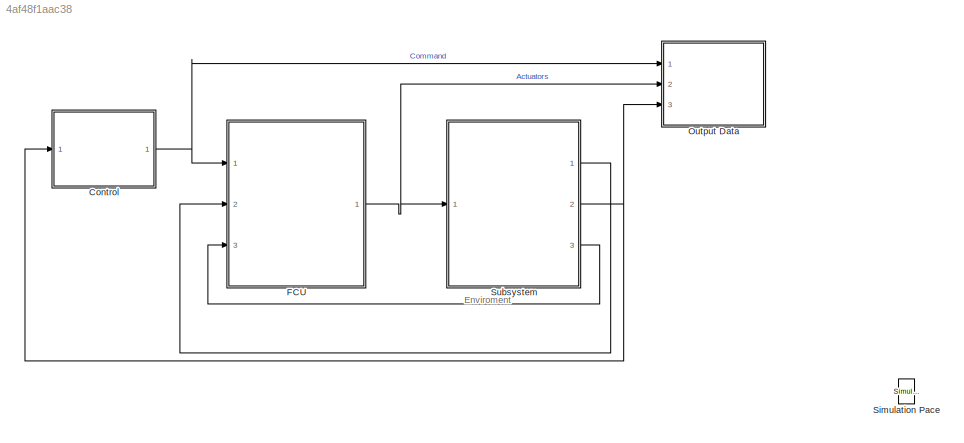
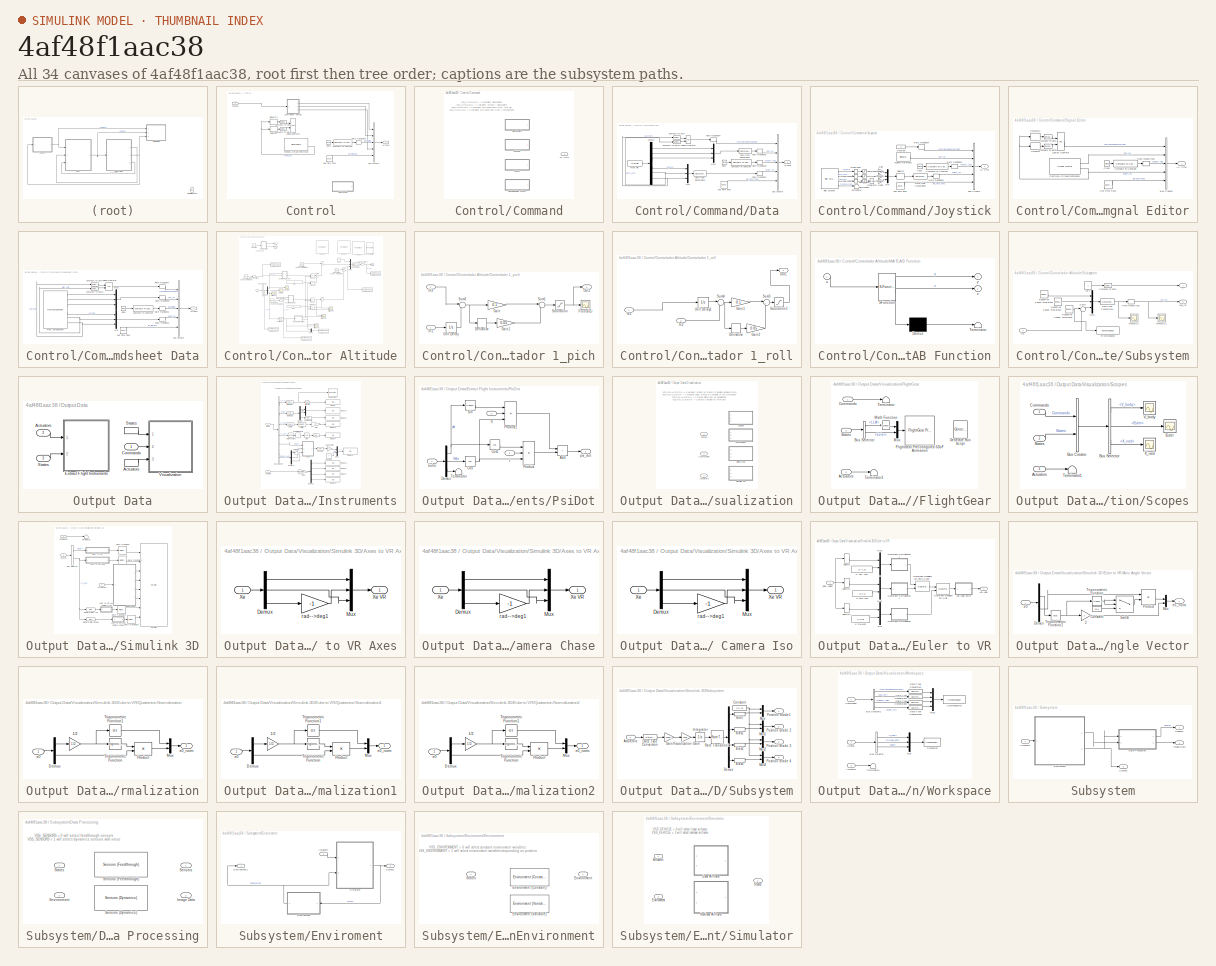
[diagram: thumbnail index - all 34 canvases of the model, root first then tree order]
MODEL slx_4af48f1aac38
KIND model
CONFIG AbsTol = auto
CONFIG EnableMultiTasking = on
CONFIG FixedStep = Ts
CONFIG MaxStep = auto
CONFIG MinStep = auto
CONFIG RelTol = 1e-3
CONFIG SampleTimeConstraint = Unconstrained
CONFIG SolverName = ode3
CONFIG StartTime = 0
CONFIG StopTime = TFinal
BLOCK [SubSystem] Control
  Ports = [1, 1]
  RequestExecContextInheritance = off
BLOCK [Outport] Control/AC Cmd
  OutDataTypeStr = Bus: CommandBus
  VectorParamsAs1DForOutWhenUnconnected = off
BLOCK [BusCreator] Control/Bus Creator
  DisplayOption = bar
  InheritFromInputs = on
  Inputs = 5
  NonVirtualBus = on
  OutDataTypeStr = Bus: CommandBus
  Ports = [5, 1]
BLOCK [Clock] Control/Clock
BLOCK [SubSystem] Control/Command
  Ports = [0, 1]
  RequestExecContextInheritance = off
  Variant = on
BLOCK [Outport] Control/Command/AC Cmd
  OutDataTypeStr = Bus: CommandBus
  VectorParamsAs1DForOutWhenUnconnected = off
BLOCK [SubSystem] Control/Command/Data
  Ports = [0, 1]
  RequestExecContextInheritance = off
  VariantControl = VSS_COMMAND_PRESAVED
BLOCK [Outport] Control/Command/Data/AC Cmd
  OutDataTypeStr = Bus: CommandBus
  VectorParamsAs1DForOutWhenUnconnected = off
BLOCK [BusCreator] Control/Command/Data/Bus Creator
  DisplayOption = bar
  InheritFromInputs = on
  Inputs = 5
  NonVirtualBus = on
  OutDataTypeStr = Bus: CommandBus
  Ports = [5, 1]
BLOCK [Clock] Control/Command/Data/Clock
BLOCK [Reference] Control/Command/Data/Compare To Constant  REF=simulink/Logic and Bit
Operations/Compare
To Constant
  Ports = [1, 1]
  SourceBlock = simulink/Logic and Bit\nOperations/Compare\nTo Constant
  SourceProductBaseCode = SL
  SourceType = Compare To Constant
BLOCK [Reference] Control/Command/Data/Compare To Zero  REF=simulink/Logic and Bit
Operations/Compare
To Zero
  Ports = [1, 1]
  SourceBlock = simulink/Logic and Bit\nOperations/Compare\nTo Zero
  SourceProductBaseCode = SL
  SourceType = Compare To Zero
BLOCK [Reference] Control/Command/Data/Compare To Zero1  REF=simulink/Logic and Bit
Operations/Compare
To Zero
  Ports = [1, 1]
  SourceBlock = simulink/Logic and Bit\nOperations/Compare\nTo Zero
  SourceProductBaseCode = SL
  SourceType = Compare To Zero
BLOCK [DataTypeConversion] Control/Command/Data/Data Type Conversion1
  OutDataTypeStr = single
  RndMeth = Floor
  SaturateOnIntegerOverflow = off
BLOCK [DataTypeConversion] Control/Command/Data/Data Type Conversion3
  OutDataTypeStr = single
  RndMeth = Floor
  SaturateOnIntegerOverflow = off
BLOCK [Demux] Control/Command/Data/Demux
  Outputs = 6
  Ports = [1, 6]
BLOCK [FromFile] Control/Command/Data/From File
  FileName = cmdData.mat
  SampleTime = Ts
BLOCK [Reference] Control/Command/Data/Live Time Ticks  REF=simulink/Sources/Counter
Free-Running
  Ports = [0, 1]
  SourceBlock = simulink/Sources/Counter\nFree-Running
  SourceProductBaseCode = SL
  SourceType = Counter Free-Running
BLOCK [Logic] Control/Command/Data/Logical Operator
  AllPortsSameDT = off
  IconShape = distinctive
  OutDataTypeStr = boolean
  Ports = [2, 1]
BLOCK [Mux] Control/Command/Data/Mux
  DisplayOption = bar
  Inputs = 3
  Ports = [3, 1]
BLOCK [Mux] Control/Command/Data/Mux1
  DisplayOption = bar
  Inputs = 3
  Ports = [3, 1]
BLOCK [RateTransition] Control/Command/Data/Rate Transition1
  OutPortSampleTime = Ts
BLOCK [RateTransition] Control/Command/Data/Rate Transition2
  OutPortSampleTime = Ts
BLOCK [RateTransition] Control/Command/Data/Rate Transition3
  OutPortSampleTime = Ts
BLOCK [RateTransition] Control/Command/Data/Rate Transition4
  OutPortSampleTime = Ts
BLOCK [SubSystem] Control/Command/Joystick
  Ports = [0, 1]
  RequestExecContextInheritance = off
  VariantControl = VSS_COMMAND_JOYSTICK
BLOCK [Outport] Control/Command/Joystick/AC Cmd
  OutDataTypeStr = Bus: CommandBus
  VectorParamsAs1DForOutWhenUnconnected = off
BLOCK [BusCreator] Control/Command/Joystick/Bus Creator
  DisplayOption = bar
  InheritFromInputs = on
  Inputs = 5
  NonVirtualBus = on
  OutDataTypeStr = Bus: CommandBus
  Ports = [5, 1]
BLOCK [Clock] Control/Command/Joystick/Clock
BLOCK [Reference] Control/Command/Joystick/Compare To Constant  REF=simulink/Logic and Bit
Operations/Compare
To Constant
  Ports = [1, 1]
  SourceBlock = simulink/Logic and Bit\nOperations/Compare\nTo Constant
  SourceProductBaseCode = SL
  SourceType = Compare To Constant
BLOCK [Constant] Control/Command/Joystick/Constant
  OutDataTypeStr = boolean
  Value = 0
BLOCK [DataTypeConversion] Control/Command/Joystick/Data Type Conversion3
  OutDataTypeStr = single
  RndMeth = Floor
  SaturateOnIntegerOverflow = off
BLOCK [DeadZone] Control/Command/Joystick/Dead Zone
  LowerValue = Command.rollDeadZoneStart
  UpperValue = Command.rollDeadZoneEnd
BLOCK [DeadZone] Control/Command/Joystick/Dead Zone1
  LowerValue = Command.pitchDeadZoneStart
  UpperValue = Command.pitchDeadZoneEnd
BLOCK [DeadZone] Control/Command/Joystick/Dead Zone2
  LowerValue = Command.yawDeadZoneStart
  UpperValue = Command.yawDeadZoneEnd
BLOCK [Gain] Control/Command/Joystick/Gain
  Gain = Command.rollGain
BLOCK [Gain] Control/Command/Joystick/Gain1
  Gain = Command.pitchGain
BLOCK [Gain] Control/Command/Joystick/Gain2
  Gain = Command.yawGain
BLOCK [Integrator] Control/Command/Joystick/Integrator
  Ports = [1, 1]
BLOCK [Reference] Control/Command/Joystick/Live Time Ticks  REF=simulink/Sources/Counter
Free-Running
  Ports = [0, 1]
  SourceBlock = simulink/Sources/Counter\nFree-Running
  SourceProductBaseCode = SL
  SourceType = Counter Free-Running
BLOCK [Mux] Control/Command/Joystick/Mux
  DisplayOption = bar
  Inputs = 3
  Ports = [3, 1]
BLOCK [Reference] Control/Command/Joystick/Pilot Joystick  REF=aerolibanimutils/Pilot Joystick
  Ports = [0, 4]
  SourceBlock = aerolibanimutils/Pilot Joystick
  SourceProductName = Aerospace Blockset
  SourceType = PilotJoystick
BLOCK [Reference] Control/Command/Joystick/Position Reference  REF=SignalEditorBlockLib/Signal Editor
  Ports = [0, 1]
  SourceBlock = SignalEditorBlockLib/Signal Editor
  SourceProductBaseCode = SL
  SourceType = SignalEditor
  UserDataPersistent = on
BLOCK [RateTransition] Control/Command/Joystick/Rate Transition1
  OutPortSampleTime = Ts
BLOCK [RateTransition] Control/Command/Joystick/Rate Transition3
  OutPortSampleTime = Ts
BLOCK [RateTransition] Control/Command/Joystick/Rate Transition4
  OutPortSampleTime = Ts
BLOCK [Saturate] Control/Command/Joystick/Saturation
  LowerLimit = Command.rollSatLower
  UpperLimit = Command.rollSatUpper
BLOCK [Saturate] Control/Command/Joystick/Saturation1
  LowerLimit = Command.pitchSatLower
  UpperLimit = Command.pitchSatUpper
BLOCK [Saturate] Control/Command/Joystick/Saturation2
  LowerLimit = Command.yawSatLower
  UpperLimit = Command.yawSatUpper
BLOCK [Selector] Control/Command/Joystick/Selector
  IndexOptions = Index vector (dialog)
  Indices = [3 2 1]
  InputPortWidth = 3
  OutputSizes = 1
  Ports = [1, 1]
BLOCK [Terminator] Control/Command/Joystick/Terminator
BLOCK [SubSystem] Control/Command/Signal Editor
  Ports = [0, 1]
  RequestExecContextInheritance = off
  VariantControl = VSS_COMMAND_SIGEDIT
BLOCK [Outport] Control/Command/Signal Editor/AC Cmd
  OutDataTypeStr = Bus: CommandBus
  VectorParamsAs1DForOutWhenUnconnected = off
BLOCK [BusCreator] Control/Command/Signal Editor/Bus Creator
  DisplayOption = bar
  InheritFromInputs = on
  Inputs = 5
  NonVirtualBus = on
  OutDataTypeStr = Bus: CommandBus
  Ports = [5, 1]
BLOCK [Clock] Control/Command/Signal Editor/Clock
BLOCK [Reference] Control/Command/Signal Editor/Compare To Constant  REF=simulink/Logic and Bit
Operations/Compare
To Constant
  Ports = [1, 1]
  SourceBlock = simulink/Logic and Bit\nOperations/Compare\nTo Constant
  SourceProductBaseCode = SL
  SourceType = Compare To Constant
BLOCK [Reference] Control/Command/Signal Editor/Compare To Zero  REF=simulink/Logic and Bit
Operations/Compare
To Zero
  Ports = [1, 1]
  SourceBlock = simulink/Logic and Bit\nOperations/Compare\nTo Zero
  SourceProductBaseCode = SL
  SourceType = Compare To Zero
BLOCK [Reference] Control/Command/Signal Editor/Compare To Zero1  REF=simulink/Logic and Bit
Operations/Compare
To Zero
  Ports = [1, 1]
  SourceBlock = simulink/Logic and Bit\nOperations/Compare\nTo Zero
  SourceProductBaseCode = SL
  SourceType = Compare To Zero
BLOCK [Reference] Control/Command/Signal Editor/Live Time Ticks  REF=simulink/Sources/Counter
Free-Running
  Ports = [0, 1]
  SourceBlock = simulink/Sources/Counter\nFree-Running
  SourceProductBaseCode = SL
  SourceType = Counter Free-Running
BLOCK [Logic] Control/Command/Signal Editor/Logical Operator
  AllPortsSameDT = off
  OutDataTypeStr = boolean
  Ports = [2, 1]
BLOCK [Reference] Control/Command/Signal Editor/Position//Attitude Reference  REF=SignalEditorBlockLib/Signal Editor
  Ports = [0, 2]
  SourceBlock = SignalEditorBlockLib/Signal Editor
  SourceProductBaseCode = SL
  SourceType = SignalEditor
  UserDataPersistent = on
BLOCK [RateTransition] Control/Command/Signal Editor/Rate Transition3
  OutPortSampleTime = Ts
BLOCK [Selector] Control/Command/Signal Editor/Selector
  IndexOptions = Index vector (dialog)
  Indices = 2
  InputPortWidth = 3
  OutputSizes = 1
  Ports = [1, 1]
BLOCK [Selector] Control/Command/Signal Editor/Selector1
  IndexOptions = Index vector (dialog)
  Indices = 3
  InputPortWidth = 3
  OutputSizes = 1
  Ports = [1, 1]
BLOCK [SubSystem] Control/Command/Spreadsheet Data
  Ports = [0, 1]
  RequestExecContextInheritance = off
  VariantControl = VSS_COMMAND_SPREADSHEET
BLOCK [Outport] Control/Command/Spreadsheet Data/AC Cmd
  OutDataTypeStr = Bus: CommandBus
  VectorParamsAs1DForOutWhenUnconnected = off
BLOCK [BusCreator] Control/Command/Spreadsheet Data/Bus Creator
  DisplayOption = bar
  InheritFromInputs = on
  Inputs = 5
  NonVirtualBus = on
  OutDataTypeStr = Bus: CommandBus
  Ports = [5, 1]
BLOCK [Clock] Control/Command/Spreadsheet Data/Clock
BLOCK [Reference] Control/Command/Spreadsheet Data/Compare To Constant  REF=simulink/Logic and Bit
Operations/Compare
To Constant
  Ports = [1, 1]
  SourceBlock = simulink/Logic and Bit\nOperations/Compare\nTo Constant
  SourceProductBaseCode = SL
  SourceType = Compare To Constant
BLOCK [Reference] Control/Command/Spreadsheet Data/Compare To Zero  REF=simulink/Logic and Bit
Operations/Compare
To Zero
  Ports = [1, 1]
  SourceBlock = simulink/Logic and Bit\nOperations/Compare\nTo Zero
  SourceProductBaseCode = SL
  SourceType = Compare To Zero
BLOCK [Reference] Control/Command/Spreadsheet Data/Compare To Zero1  REF=simulink/Logic and Bit
Operations/Compare
To Zero
  Ports = [1, 1]
  SourceBlock = simulink/Logic and Bit\nOperations/Compare\nTo Zero
  SourceProductBaseCode = SL
  SourceType = Compare To Zero
BLOCK [FromSpreadsheet] Control/Command/Spreadsheet Data/From Spreadsheet
  FileName = cmdData.xlsx
  OutDataTypeStr = single
  Ports = [0, 6]
  SampleTime = Ts
  SheetName = data
BLOCK [Reference] Control/Command/Spreadsheet Data/Live Time Ticks  REF=simulink/Sources/Counter
Free-Running
  Ports = [0, 1]
  SourceBlock = simulink/Sources/Counter\nFree-Running
  SourceProductBaseCode = SL
  SourceType = Counter Free-Running
BLOCK [Logic] Control/Command/Spreadsheet Data/Logical Operator
  AllPortsSameDT = off
  IconShape = distinctive
  OutDataTypeStr = boolean
  Ports = [2, 1]
BLOCK [Mux] Control/Command/Spreadsheet Data/Mux
  DisplayOption = bar
  Inputs = 3
  Ports = [3, 1]
BLOCK [Mux] Control/Command/Spreadsheet Data/Mux1
  DisplayOption = bar
  Inputs = 3
  Ports = [3, 1]
BLOCK [RateTransition] Control/Command/Spreadsheet Data/Rate Transition1
  OutPortSampleTime = Ts
BLOCK [RateTransition] Control/Command/Spreadsheet Data/Rate Transition2
  OutPortSampleTime = Ts
BLOCK [RateTransition] Control/Command/Spreadsheet Data/Rate Transition3
  OutPortSampleTime = Ts
BLOCK [RateTransition] Control/Command/Spreadsheet Data/Rate Transition4
  OutPortSampleTime = Ts
BLOCK [Reference] Control/Compare To Constant  REF=simulink/Logic and Bit
Operations/Compare
To Constant
  Ports = [1, 1]
  SourceBlock = simulink/Logic and Bit\nOperations/Compare\nTo Constant
  SourceProductBaseCode = SL
  SourceType = Compare To Constant
BLOCK [Reference] Control/Compare To Zero  REF=simulink/Logic and Bit
Operations/Compare
To Zero
  Ports = [1, 1]
  SourceBlock = simulink/Logic and Bit\nOperations/Compare\nTo Zero
  SourceProductBaseCode = SL
  SourceType = Compare To Zero
BLOCK [Reference] Control/Compare To Zero1  REF=simulink/Logic and Bit
Operations/Compare
To Zero
  Ports = [1, 1]
  SourceBlock = simulink/Logic and Bit\nOperations/Compare\nTo Zero
  SourceProductBaseCode = SL
  SourceType = Compare To Zero
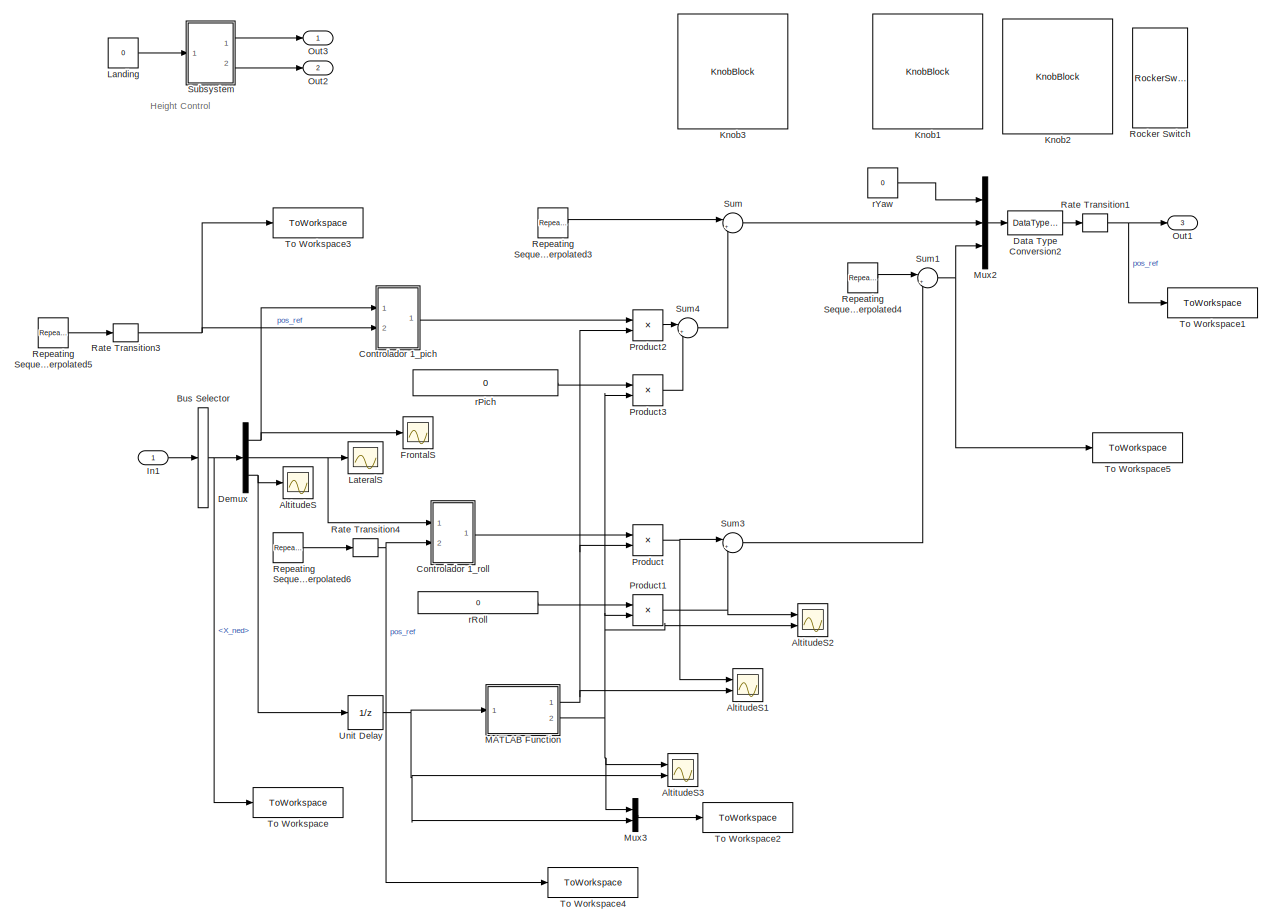
[diagram: Control/Controlador Altitude - part 1/1, most of the canvas]
BLOCK [SubSystem] Control/Controlador Altitude
  Ports = [1, 3]
  RequestExecContextInheritance = off
BLOCK [Scope] Control/Controlador Altitude/AltitudeS
  Floating = off
  NumInputPorts = 1
  Ports = [1]
  ScopeSpecificationString = Simulink.scopes.TimeScopeBlockCfg('CurrentConfiguration', extmgr.ConfigurationSet(extmgr.Configuration('Core','General UI',true),extmgr.Configuration('Core','Source UI',true),extmgr.Configuration('Sources','WiredSimulink',true,'DataLoggingVariableName','ScopeData4','DataLoggingSaveFormat','StructureWithTime','DataLoggingDecimation','1'),extmgr.Configuration('Visuals','Time Domain',true,'Serialized...<+1666ch>
BLOCK [Scope] Control/Controlador Altitude/AltitudeS1
  Floating = off
  NumInputPorts = 2
  Ports = [2]
  ScopeSpecificationString = Simulink.scopes.TimeScopeBlockCfg('CurrentConfiguration', extmgr.ConfigurationSet(extmgr.Configuration('Core','General UI',true),extmgr.Configuration('Core','Source UI',true),extmgr.Configuration('Sources','WiredSimulink',true,'DataLoggingVariableName','ScopeData1','DataLoggingSaveFormat','StructureWithTime','DataLoggingDecimation','1'),extmgr.Configuration('Visuals','Time Domain',true,'Serialized...<+1683ch>
BLOCK [Scope] Control/Controlador Altitude/AltitudeS2
  Floating = off
  NumInputPorts = 2
  Ports = [2]
  ScopeSpecificationString = Simulink.scopes.TimeScopeBlockCfg('CurrentConfiguration', extmgr.ConfigurationSet(extmgr.Configuration('Core','General UI',true),extmgr.Configuration('Core','Source UI',true),extmgr.Configuration('Sources','WiredSimulink',true,'DataLoggingVariableName','ScopeData2','DataLoggingSaveFormat','StructureWithTime','DataLoggingDecimation','1'),extmgr.Configuration('Visuals','Time Domain',true,'Serialized...<+1676ch>
BLOCK [Scope] Control/Controlador Altitude/AltitudeS3
  Floating = off
  NumInputPorts = 2
  Ports = [2]
  ScopeSpecificationString = Simulink.scopes.TimeScopeBlockCfg('CurrentConfiguration', extmgr.ConfigurationSet(extmgr.Configuration('Core','General UI',true),extmgr.Configuration('Core','Source UI',true),extmgr.Configuration('Sources','WiredSimulink',true,'DataLoggingVariableName','ScopeData3','DataLoggingSaveFormat','StructureWithTime','DataLoggingDecimation','1'),extmgr.Configuration('Visuals','Time Domain',true,'Serialized...<+1696ch>
BLOCK [BusSelector] Control/Controlador Altitude/Bus Selector
  OutputSignals = X_ned
  Ports = [1, 1]
BLOCK [SubSystem] Control/Controlador Altitude/Controlador 1_pich
  Ports = [2, 1]
  RequestExecContextInheritance = off
BLOCK [Derivative] Control/Controlador Altitude/Controlador 1_pich/Derivative
BLOCK [Scope] Control/Controlador Altitude/Controlador 1_pich/FrontalEr
  Floating = off
  NumInputPorts = 1
  Ports = [1]
  ScopeSpecificationString = Simulink.scopes.TimeScopeBlockCfg('CurrentConfiguration', extmgr.ConfigurationSet(extmgr.Configuration('Core','General UI',true),extmgr.Configuration('Core','Source UI',true),extmgr.Configuration('Sources','WiredSimulink',true,'DataLoggingVariableName','ScopeData1','DataLoggingSaveFormat','StructureWithTime','DataLoggingDecimation','1'),extmgr.Configuration('Visuals','Time Domain',true,'Serialized...<+1685ch>
BLOCK [Gain] Control/Controlador Altitude/Controlador 1_pich/Gain
  Gain = 0.1
BLOCK [Gain] Control/Controlador Altitude/Controlador 1_pich/Gain1
  Gain = 0.05
BLOCK [Inport] Control/Controlador Altitude/Controlador 1_pich/In1
BLOCK [Inport] Control/Controlador Altitude/Controlador 1_pich/In2
  Port = 2
BLOCK [Outport] Control/Controlador Altitude/Controlador 1_pich/Out1
BLOCK [Saturate] Control/Controlador Altitude/Controlador 1_pich/Saturation
  LowerLimit = -0.2
  UpperLimit = 0.2
BLOCK [Sum] Control/Controlador Altitude/Controlador 1_pich/Sum1
  Inputs = |++
  Ports = [2, 1]
BLOCK [Sum] Control/Controlador Altitude/Controlador 1_pich/Sum3
  Inputs = |-+
  Ports = [2, 1]
BLOCK [UnitDelay] Control/Controlador Altitude/Controlador 1_pich/Unit Delay
  HasFrameUpgradeWarning = on
  SampleTime = -1
BLOCK [SubSystem] Control/Controlador Altitude/Controlador 1_roll
  Ports = [2, 1]
  RequestExecContextInheritance = off
BLOCK [Derivative] Control/Controlador Altitude/Controlador 1_roll/Derivative
BLOCK [Gain] Control/Controlador Altitude/Controlador 1_roll/Gain1
  Gain = 0.1
BLOCK [Gain] Control/Controlador Altitude/Controlador 1_roll/Gain2
  Gain = 0.05
BLOCK [Inport] Control/Controlador Altitude/Controlador 1_roll/In1
BLOCK [Inport] Control/Controlador Altitude/Controlador 1_roll/In2
  Port = 2
BLOCK [Outport] Control/Controlador Altitude/Controlador 1_roll/Out1
BLOCK [Saturate] Control/Controlador Altitude/Controlador 1_roll/Saturation1
  LowerLimit = -0.1
  UpperLimit = 0.1
BLOCK [Sum] Control/Controlador Altitude/Controlador 1_roll/Sum3
  Inputs = |++
  Ports = [2, 1]
BLOCK [Sum] Control/Controlador Altitude/Controlador 1_roll/Sum4
  Inputs = |-+
  Ports = [2, 1]
BLOCK [UnitDelay] Control/Controlador Altitude/Controlador 1_roll/Unit Delay1
  HasFrameUpgradeWarning = on
  SampleTime = -1
BLOCK [DataTypeConversion] Control/Controlador Altitude/Data Type Conversion2
  OutDataTypeStr = single
  RndMeth = Floor
  SaturateOnIntegerOverflow = off
BLOCK [Demux] Control/Controlador Altitude/Demux
  DisplayOption = none
  Outputs = 3
  Ports = [1, 3]
BLOCK [Scope] Control/Controlador Altitude/FrontalS
  Floating = off
  NumInputPorts = 1
  Ports = [1]
  ScopeSpecificationString = Simulink.scopes.TimeScopeBlockCfg('CurrentConfiguration', extmgr.ConfigurationSet(extmgr.Configuration('Core','General UI',true),extmgr.Configuration('Core','Source UI',true),extmgr.Configuration('Sources','WiredSimulink',true,'DataLoggingVariableName','ScopeData5','DataLoggingSaveFormat','StructureWithTime','DataLoggingDecimation','1'),extmgr.Configuration('Visuals','Time Domain',true,'Serialized...<+1695ch>
BLOCK [Inport] Control/Controlador Altitude/In1
BLOCK [KnobBlock] Control/Controlador Altitude/Knob1
  ScaleMax = 0.005
  ScaleMin = -0.005
BLOCK [KnobBlock] Control/Controlador Altitude/Knob2
  ScaleMax = 0.005
  ScaleMin = -0.005
BLOCK [KnobBlock] Control/Controlador Altitude/Knob3
  ScaleMax = 2
  ScaleMin = -2
BLOCK [Constant] Control/Controlador Altitude/Landing
  Value = 0
BLOCK [Scope] Control/Controlador Altitude/LateralS
  Floating = off
  NumInputPorts = 1
  Ports = [1]
  ScopeSpecificationString = Simulink.scopes.TimeScopeBlockCfg('CurrentConfiguration', extmgr.ConfigurationSet(extmgr.Configuration('Core','General UI',true),extmgr.Configuration('Core','Source UI',true),extmgr.Configuration('Sources','WiredSimulink',true,'DataLoggingVariableName','ScopeData6','DataLoggingSaveFormat','StructureWithTime','DataLoggingDecimation','1'),extmgr.Configuration('Visuals','Time Domain',true,'Serialized...<+1698ch>
BLOCK [SubSystem] Control/Controlador Altitude/MATLAB Function
  ErrorFcn = Stateflow.Translate.translate
  PermitHierarchicalResolution = ExplicitOnly
  Ports = [1, 2]
  RequestExecContextInheritance = off
  SFBlockType = MATLAB Function
  TreatAsAtomicUnit = on
BLOCK [Demux] Control/Controlador Altitude/MATLAB Function/ Demux 
  Outputs = 1
  Ports = [1, 1]
BLOCK [S-Function] Control/Controlador Altitude/MATLAB Function/ SFunction 
  EnableBusSupport = on
  FunctionName = sf_sfun
  PortCounts = [1 3]
  Ports = [1, 3]
  SFcnIsStateOwnerBlock = off
  SFunctionDeploymentMode = off
  Tag = Stateflow S-Function 2
BLOCK [Terminator] Control/Controlador Altitude/MATLAB Function/ Terminator 
BLOCK [Inport] Control/Controlador Altitude/MATLAB Function/u
BLOCK [Outport] Control/Controlador Altitude/MATLAB Function/y
BLOCK [Outport] Control/Controlador Altitude/MATLAB Function/z
  Port = 2
BLOCK [Mux] Control/Controlador Altitude/Mux2
  DisplayOption = bar
  Inputs = 3
  Ports = [3, 1]
BLOCK [Mux] Control/Controlador Altitude/Mux3
  DisplayOption = bar
  Inputs = 2
  Ports = [2, 1]
BLOCK [Outport] Control/Controlador Altitude/Out1
  Port = 3
BLOCK [Outport] Control/Controlador Altitude/Out2
  Port = 2
BLOCK [Outport] Control/Controlador Altitude/Out3
BLOCK [Product] Control/Controlador Altitude/Product
  Ports = [2, 1]
BLOCK [Product] Control/Controlador Altitude/Product1
  Ports = [2, 1]
BLOCK [Product] Control/Controlador Altitude/Product2
  Ports = [2, 1]
BLOCK [Product] Control/Controlador Altitude/Product3
  Ports = [2, 1]
BLOCK [RateTransition] Control/Controlador Altitude/Rate Transition1
  OutPortSampleTime = Ts
BLOCK [RateTransition] Control/Controlador Altitude/Rate Transition3
  OutPortSampleTime = Ts
BLOCK [RateTransition] Control/Controlador Altitude/Rate Transition4
  OutPortSampleTime = Ts
BLOCK [Reference] Control/Controlador Altitude/Repeating Sequence Interpolated3  REF=simulink/Sources/Repeating
Sequence
Interpolated
  Ports = [0, 1]
  SourceBlock = simulink/Sources/Repeating\nSequence\nInterpolated
  SourceProductBaseCode = SL
  SourceType = Repeating Sequence Interpolated
BLOCK [Reference] Control/Controlador Altitude/Repeating Sequence Interpolated4  REF=simulink/Sources/Repeating
Sequence
Interpolated
  Ports = [0, 1]
  SourceBlock = simulink/Sources/Repeating\nSequence\nInterpolated
  SourceProductBaseCode = SL
  SourceType = Repeating Sequence Interpolated
BLOCK [Reference] Control/Controlador Altitude/Repeating Sequence Interpolated5  REF=simulink/Sources/Repeating
Sequence
Interpolated
  Ports = [0, 1]
  SourceBlock = simulink/Sources/Repeating\nSequence\nInterpolated
  SourceProductBaseCode = SL
  SourceType = Repeating Sequence Interpolated
BLOCK [Reference] Control/Controlador Altitude/Repeating Sequence Interpolated6  REF=simulink/Sources/Repeating
Sequence
Interpolated
  Ports = [0, 1]
  SourceBlock = simulink/Sources/Repeating\nSequence\nInterpolated
  SourceProductBaseCode = SL
  SourceType = Repeating Sequence Interpolated
BLOCK [RockerSwitchBlock] Control/Controlador Altitude/Rocker Switch
BLOCK [SubSystem] Control/Controlador Altitude/Subsystem
  Ports = [1, 2]
  RequestExecContextInheritance = off
BLOCK [Reference] Control/Controlador Altitude/Subsystem/Compare To Zero  REF=simulink/Logic and Bit
Operations/Compare
To Zero
  Ports = [1, 1]
  SourceBlock = simulink/Logic and Bit\nOperations/Compare\nTo Zero
  SourceProductBaseCode = SL
  SourceType = Compare To Zero
BLOCK [DataTypeConversion] Control/Controlador Altitude/Subsystem/Data Type Conversion1
  OutDataTypeStr = single
  RndMeth = Floor
  SaturateOnIntegerOverflow = off
BLOCK [Scope] Control/Controlador Altitude/Subsystem/FrontalS1
  Floating = off
  NumInputPorts = 1
  Ports = [1]
  ScopeSpecificationString = Simulink.scopes.TimeScopeBlockCfg('CurrentConfiguration', extmgr.ConfigurationSet(extmgr.Configuration('Core','General UI',true),extmgr.Configuration('Core','Source UI',true),extmgr.Configuration('Sources','WiredSimulink',true,'DataLoggingVariableName','ScopeData1','DataLoggingSaveFormat','StructureWithTime','DataLoggingDecimation','1'),extmgr.Configuration('Visuals','Time Domain',true,'Serialized...<+1723ch>
BLOCK [Scope] Control/Controlador Altitude/Subsystem/FrontalS2
  Floating = off
  NumInputPorts = 1
  Ports = [1]
  ScopeSpecificationString = Simulink.scopes.TimeScopeBlockCfg('CurrentConfiguration', extmgr.ConfigurationSet(extmgr.Configuration('Core','General UI',true),extmgr.Configuration('Core','Source UI',true),extmgr.Configuration('Sources','WiredSimulink',true,'DataLoggingVariableName','ScopeData1','DataLoggingSaveFormat','StructureWithTime','DataLoggingDecimation','1'),extmgr.Configuration('Visuals','Time Domain',true,'Serialized...<+1715ch>
BLOCK [Inport] Control/Controlador Altitude/Subsystem/In1
BLOCK [Mux] Control/Controlador Altitude/Subsystem/Mux1
  DisplayOption = bar
  Inputs = 3
  Ports = [3, 1]
BLOCK [RateTransition] Control/Controlador Altitude/Subsystem/Rate Transition2
  OutPortSampleTime = Ts
BLOCK [Reference] Control/Controlador Altitude/Subsystem/Repeating Sequence Interpolated  REF=simulink/Sources/Repeating
Sequence
Interpolated
  Ports = [0, 1]
  SourceBlock = simulink/Sources/Repeating\nSequence\nInterpolated
  SourceProductBaseCode = SL
  SourceType = Repeating Sequence Interpolated
BLOCK [Reference] Control/Controlador Altitude/Subsystem/Repeating Sequence Interpolated1  REF=simulink/Sources/Repeating
Sequence
Interpolated
  Ports = [0, 1]
  SourceBlock = simulink/Sources/Repeating\nSequence\nInterpolated
  SourceProductBaseCode = SL
  SourceType = Repeating Sequence Interpolated
BLOCK [Reference] Control/Controlador Altitude/Subsystem/Repeating Sequence Interpolated2  REF=simulink/Sources/Repeating
Sequence
Interpolated
  Ports = [0, 1]
  SourceBlock = simulink/Sources/Repeating\nSequence\nInterpolated
  SourceProductBaseCode = SL
  SourceType = Repeating Sequence Interpolated
BLOCK [Sum] Control/Controlador Altitude/Subsystem/Sum2
  Inputs = |++
  Ports = [2, 1]
BLOCK [ToWorkspace] Control/Controlador Altitude/Subsystem/To Workspace5
  FixptAsFi = on
  MaxDataPoints = inf
  Ports = [1]
  SampleTime = Ts
  SaveFormat = Timeseries
  VariableName = refAltOutput
BLOCK [Outport] Control/Controlador Altitude/Subsystem/pos_ref
  Port = 2
BLOCK [Constant] Control/Controlador Altitude/Subsystem/refY
BLOCK [Outport] Control/Controlador Altitude/Subsystem/y
BLOCK [Sum] Control/Controlador Altitude/Sum
  Inputs = |++
  Ports = [2, 1]
BLOCK [Sum] Control/Controlador Altitude/Sum1
  Inputs = |++
  Ports = [2, 1]
BLOCK [Sum] Control/Controlador Altitude/Sum3
  Inputs = |++
  Ports = [2, 1]
BLOCK [Sum] Control/Controlador Altitude/Sum4
  Inputs = |++
  Ports = [2, 1]
BLOCK [ToWorkspace] Control/Controlador Altitude/To Workspace
  FixptAsFi = on
  MaxDataPoints = inf
  Ports = [1]
  SampleTime = -1
  SaveFormat = Timeseries
  VariableName = posicaoAeronave
BLOCK [ToWorkspace] Control/Controlador Altitude/To Workspace1
  FixptAsFi = on
  MaxDataPoints = inf
  Ports = [1]
  SampleTime = -1
  SaveFormat = Timeseries
  VariableName = sinalControle
BLOCK [ToWorkspace] Control/Controlador Altitude/To Workspace2
  FixptAsFi = on
  MaxDataPoints = inf
  Ports = [1]
  SampleTime = -1
  SaveFormat = Timeseries
  VariableName = posicaoAeronave1
BLOCK [ToWorkspace] Control/Controlador Altitude/To Workspace3
  FixptAsFi = on
  MaxDataPoints = inf
  Ports = [1]
  SampleTime = -1
  SaveFormat = Timeseries
  VariableName = bkp_sim1
BLOCK [ToWorkspace] Control/Controlador Altitude/To Workspace4
  FixptAsFi = on
  MaxDataPoints = inf
  Ports = [1]
  SampleTime = -1
  SaveFormat = Timeseries
  VariableName = bkp_sim
BLOCK [ToWorkspace] Control/Controlador Altitude/To Workspace5
  FixptAsFi = on
  MaxDataPoints = inf
  Ports = [1]
  SampleTime = -1
  SaveFormat = Timeseries
  VariableName = sinalControle2
BLOCK [UnitDelay] Control/Controlador Altitude/Unit Delay
  HasFrameUpgradeWarning = on
  SampleTime = -1
BLOCK [Constant] Control/Controlador Altitude/rPich
  Value = 0
BLOCK [Constant] Control/Controlador Altitude/rRoll
  Value = 0
BLOCK [Constant] Control/Controlador Altitude/rYaw
  Value = 0
BLOCK [Reference] Control/Live Time Ticks  REF=simulink/Sources/Counter
Free-Running
  Ports = [0, 1]
  SourceBlock = simulink/Sources/Counter\nFree-Running
  SourceProductBaseCode = SL
  SourceType = Counter Free-Running
BLOCK [Logic] Control/Logical Operator
  AllPortsSameDT = off
  OutDataTypeStr = boolean
  Ports = [2, 1]
BLOCK [Reference] Control/Position//Attitude Reference  REF=SignalEditorBlockLib/Signal Editor
  Ports = [0, 2]
  SourceBlock = SignalEditorBlockLib/Signal Editor
  SourceProductBaseCode = SL
  SourceType = SignalEditor
  UserDataPersistent = on
BLOCK [RateTransition] Control/Rate Transition3
  OutPortSampleTime = Ts
BLOCK [Selector] Control/Selector
  IndexOptions = Index vector (dialog)
  Indices = 2
  InputPortWidth = 3
  OutputSizes = 1
  Ports = [1, 1]
BLOCK [Selector] Control/Selector1
  IndexOptions = Index vector (dialog)
  Indices = 3
  InputPortWidth = 3
  OutputSizes = 1
  Ports = [1, 1]
BLOCK [Inport] Control/States
BLOCK [ModelReference] FCU
  ModelNameDialog = flightControlSystem.slx
  ModelReferenceVersion = 3.0
  Ports = [3, 1]
BLOCK [SubSystem] Output Data
  Ports = [3]
  RequestExecContextInheritance = off
BLOCK [Inport] Output Data/Actuators
  Port = 2
BLOCK [InportShadow] Output Data/Actuators 
  Port = 2
BLOCK [Inport] Output Data/Commands
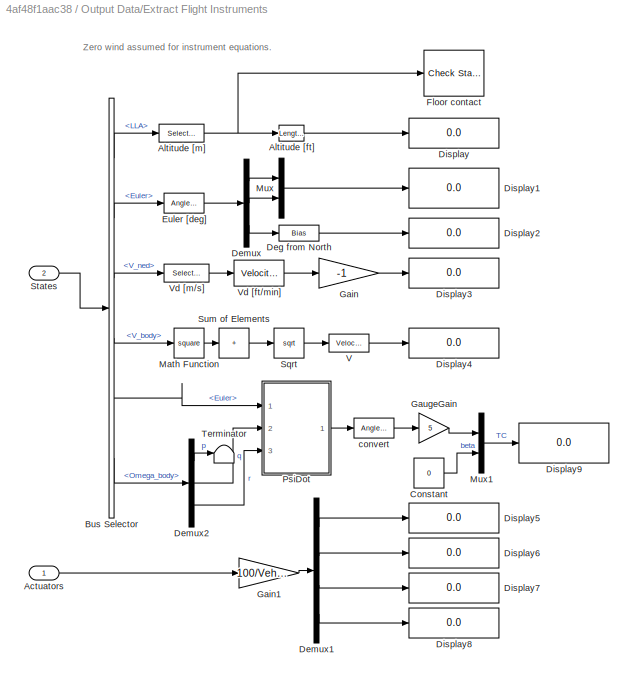
BLOCK [SubSystem] Output Data/Extract Flight Instruments
  Ports = [2]
  RequestExecContextInheritance = off
BLOCK [Inport] Output Data/Extract Flight Instruments/Actuators
BLOCK [Reference] Output Data/Extract Flight Instruments/Altitude [ft]  REF=aerolibconvert2/Length Conversion
  Ports = [1, 1]
  SourceBlock = aerolibconvert2/Length Conversion
  SourceProductName = Aerospace Blockset
  SourceType = Length Conversion
BLOCK [Selector] Output Data/Extract Flight Instruments/Altitude [m]
  IndexOptions = Index vector (dialog)
  Indices = [3]
  InputPortWidth = 3
  OutputSizes = 1
  Ports = [1, 1]
BLOCK [BusSelector] Output Data/Extract Flight Instruments/Bus Selector
  OutputSignals = LLA,Euler,V_ned,V_body,Euler,Omega_body
  Ports = [1, 6]
BLOCK [Constant] Output Data/Extract Flight Instruments/Constant
  Value = 0
BLOCK [Bias] Output Data/Extract Flight Instruments/Deg from North
  Bias = Vehicle.PositionOnEarth.FlatEarthToLLA.xAxis
  SaturateOnIntegerOverflow = off
BLOCK [Demux] Output Data/Extract Flight Instruments/Demux
  Outputs = 3
  Ports = [1, 3]
BLOCK [Demux] Output Data/Extract Flight Instruments/Demux1
  Ports = [1, 4]
BLOCK [Demux] Output Data/Extract Flight Instruments/Demux2
  Outputs = 3
  Ports = [1, 3]
BLOCK [Display] Output Data/Extract Flight Instruments/Display
  Decimation = 1
  Ports = [1]
BLOCK [Display] Output Data/Extract Flight Instruments/Display1
  Decimation = 1
  Ports = [1]
BLOCK [Display] Output Data/Extract Flight Instruments/Display2
  Decimation = 1
  Ports = [1]
BLOCK [Display] Output Data/Extract Flight Instruments/Display3
  Decimation = 1
  Ports = [1]
BLOCK [Display] Output Data/Extract Flight Instruments/Display4
  Decimation = 1
  Ports = [1]
BLOCK [Display] Output Data/Extract Flight Instruments/Display5
  Decimation = 1
  Ports = [1]
BLOCK [Display] Output Data/Extract Flight Instruments/Display6
  Decimation = 1
  Ports = [1]
BLOCK [Display] Output Data/Extract Flight Instruments/Display7
  Decimation = 1
  Ports = [1]
BLOCK [Display] Output Data/Extract Flight Instruments/Display8
  Decimation = 1
  Ports = [1]
BLOCK [Display] Output Data/Extract Flight Instruments/Display9
  Decimation = 1
  Ports = [1]
BLOCK [Reference] Output Data/Extract Flight Instruments/Euler [deg]  REF=aerolibconvert2/Angle Conversion
  Ports = [1, 1]
  SourceBlock = aerolibconvert2/Angle Conversion
  SourceProductName = Aerospace Blockset
  SourceType = Angle Conversion
BLOCK [Reference] Output Data/Extract Flight Instruments/Floor contact  REF=simulink/Model
Verification/Check Static 
Lower Bound
  Description = init.posLLA(3) <= u
  Ports = [1]
  SourceBlock = simulink/Model\nVerification/Check Static \nLower Bound
  SourceProductBaseCode = SL
  SourceType = Checks_SMin
BLOCK [Gain] Output Data/Extract Flight Instruments/Gain
  Gain = -1
BLOCK [Gain] Output Data/Extract Flight Instruments/Gain1
  Gain = 100/Vehicle.Motor.maxLimit*[1 -1 1 -1]
BLOCK [Gain] Output Data/Extract Flight Instruments/GaugeGain
  Gain = 5
BLOCK [Math] Output Data/Extract Flight Instruments/Math Function
  Operator = square
  Ports = [1, 1]
  SignedPower = on
BLOCK [Mux] Output Data/Extract Flight Instruments/Mux
  DisplayOption = bar
  Inputs = 2
  Ports = [2, 1]
BLOCK [Mux] Output Data/Extract Flight Instruments/Mux1
  DisplayOption = bar
  Inputs = 2
  Ports = [2, 1]
BLOCK [SubSystem] Output Data/Extract Flight Instruments/PsiDot
  Ports = [3, 1]
  RequestExecContextInheritance = off
BLOCK [Sum] Output Data/Extract Flight Instruments/PsiDot/Add
  IconShape = rectangular
  Ports = [2, 1]
BLOCK [Trigonometry] Output Data/Extract Flight Instruments/PsiDot/Cos
  Operator = cos
  Ports = [1, 1]
BLOCK [Trigonometry] Output Data/Extract Flight Instruments/PsiDot/Cos1
  Operator = cos
  Ports = [1, 1]
BLOCK [Demux] Output Data/Extract Flight Instruments/PsiDot/Demux
  Outputs = 3
  Ports = [1, 3]
BLOCK [Inport] Output Data/Extract Flight Instruments/PsiDot/Euler
BLOCK [Product] Output Data/Extract Flight Instruments/PsiDot/Product
  Inputs = **/
  Ports = [3, 1]
BLOCK [Product] Output Data/Extract Flight Instruments/PsiDot/Product1
  Inputs = **/
  Ports = [3, 1]
BLOCK [Trigonometry] Output Data/Extract Flight Instruments/PsiDot/Sin
  Ports = [1, 1]
BLOCK [Terminator] Output Data/Extract Flight Instruments/PsiDot/Terminator
BLOCK [Outport] Output Data/Extract Flight Instruments/PsiDot/psi_dot
BLOCK [Inport] Output Data/Extract Flight Instruments/PsiDot/q
  Port = 2
BLOCK [Inport] Output Data/Extract Flight Instruments/PsiDot/r
  Port = 3
BLOCK [Sqrt] Output Data/Extract Flight Instruments/Sqrt
BLOCK [Inport] Output Data/Extract Flight Instruments/States
  Port = 2
BLOCK [Sum] Output Data/Extract Flight Instruments/Sum of Elements
  IconShape = rectangular
  Inputs = +
  Ports = [1, 1]
BLOCK [Terminator] Output Data/Extract Flight Instruments/Terminator
BLOCK [Reference] Output Data/Extract Flight Instruments/V  REF=aerolibconvert2/Velocity Conversion
  Ports = [1, 1]
  SourceBlock = aerolibconvert2/Velocity Conversion
  SourceProductName = Aerospace Blockset
  SourceType = Velocity Conversion
BLOCK [Reference] Output Data/Extract Flight Instruments/Vd [ft//min]  REF=aerolibconvert2/Velocity Conversion
  Ports = [1, 1]
  SourceBlock = aerolibconvert2/Velocity Conversion
  SourceProductName = Aerospace Blockset
  SourceType = Velocity Conversion
BLOCK [Selector] Output Data/Extract Flight Instruments/Vd [m//s]
  IndexOptions = Index vector (dialog)
  Indices = [3]
  InputPortWidth = 3
  OutputSizes = 1
  Ports = [1, 1]
BLOCK [Reference] Output Data/Extract Flight Instruments/convert  REF=aerolibconvert2/Angle Conversion
  Ports = [1, 1]
  SourceBlock = aerolibconvert2/Angle Conversion
  SourceProductName = Aerospace Blockset
  SourceType = Angle Conversion
BLOCK [Inport] Output Data/States
  Port = 3
BLOCK [InportShadow] Output Data/States 
  Port = 3
BLOCK [SubSystem] Output Data/Visualization
  Ports = [3]
  RequestExecContextInheritance = off
  Variant = on
BLOCK [Inport] Output Data/Visualization/Actuators
  Port = 3
BLOCK [Inport] Output Data/Visualization/Commands
  OutDataTypeStr = Bus: CommandBus
  Port = 2
BLOCK [SubSystem] Output Data/Visualization/FlightGear
  Ports = [3]
  RequestExecContextInheritance = off
  VariantControl = VSS_VISUALIZATION_FLIGHTGEAR
BLOCK [Inport] Output Data/Visualization/FlightGear/Actuators
  Port = 3
BLOCK [BusSelector] Output Data/Visualization/FlightGear/Bus Selector
  OutputSignals = LLA,Euler
  Ports = [1, 2]
BLOCK [Inport] Output Data/Visualization/FlightGear/Commands
BLOCK [Reference] Output Data/Visualization/FlightGear/FlightGear Preconfigured 6DoF Animation  REF=aerolibfltsims/FlightGear
Preconfigured
6DoF Animation
  AttributesFormatString = Version Selected: %<xFlightGearVersion>
  Ports = [1]
  SourceBlock = aerolibfltsims/FlightGear\nPreconfigured\n6DoF Animation
  SourceProductName = Aerospace Blockset
  SourceType = FlightGearQuick6DoFAnimation
BLOCK [Reference] Output Data/Visualization/FlightGear/Generate Run Script  REF=aerolibfltsims/Generate
Run Script
  Ports = []
  SourceBlock = aerolibfltsims/Generate\nRun Script
  SourceProductName = Aerospace Blockset
  SourceType = Generate FlightGear Run Script
BLOCK [Math] Output Data/Visualization/FlightGear/Math Function
  Operator = transpose
  Ports = [1, 1]
  SignedPower = on
BLOCK [Mux] Output Data/Visualization/FlightGear/Mux
  DisplayOption = bar
  Inputs = 2
  Ports = [2, 1]
BLOCK [Inport] Output Data/Visualization/FlightGear/States
  Port = 2
BLOCK [Terminator] Output Data/Visualization/FlightGear/Terminator
BLOCK [Terminator] Output Data/Visualization/FlightGear/Terminator1
BLOCK [SubSystem] Output Data/Visualization/Scopes
  Ports = [3]
  RequestExecContextInheritance = off
  VariantControl = VSS_VISUALIZATION_SCOPES
BLOCK [Inport] Output Data/Visualization/Scopes/Actuators
  Port = 3
BLOCK [BusCreator] Output Data/Visualization/Scopes/Bus Creator
  DisplayOption = bar
  InheritFromInputs = on
  Inputs = 2
  Ports = [2, 1]
BLOCK [BusSelector] Output Data/Visualization/Scopes/Bus Selector
  OutputSignals = States.V_body,States.Euler,States.X_ned
  Ports = [1, 3]
BLOCK [Inport] Output Data/Visualization/Scopes/Commands
BLOCK [Scope] Output Data/Visualization/Scopes/Euler
  Floating = off
  NumInputPorts = 1
  Ports = [1]
  ScopeSpecificationString = Simulink.scopes.TimeScopeBlockCfg('CurrentConfiguration', extmgr.ConfigurationSet(extmgr.Configuration('Core','General UI',true),extmgr.Configuration('Core','Source UI',true),extmgr.Configuration('Sources','WiredSimulink',true,'DataLoggingVariableName','ScopeData2','DataLoggingSaveFormat','StructureWithTime','DataLoggingDecimation','1'),extmgr.Configuration('Visuals','Time Domain',true,'Serialized...<+1593ch>
BLOCK [Inport] Output Data/Visualization/Scopes/States
  Port = 2
BLOCK [Terminator] Output Data/Visualization/Scopes/Terminator1
BLOCK [Scope] Output Data/Visualization/Scopes/V_body
  Floating = off
  NumInputPorts = 1
  Ports = [1]
  ScopeSpecificationString = Simulink.scopes.TimeScopeBlockCfg('CurrentConfiguration', extmgr.ConfigurationSet(extmgr.Configuration('Core','General UI',true),extmgr.Configuration('Core','Source UI',true),extmgr.Configuration('Sources','WiredSimulink',true,'DataLoggingSaveFormat','StructureWithTime','DataLoggingDecimation','1'),extmgr.Configuration('Visuals','Time Domain',true,'SerializedDisplays',{struct('MinYLimReal','-2.968...<+1548ch>
BLOCK [Scope] Output Data/Visualization/Scopes/X_ned
  Floating = off
  NumInputPorts = 1
  Ports = [1]
  ScopeSpecificationString = Simulink.scopes.TimeScopeBlockCfg('CurrentConfiguration', extmgr.ConfigurationSet(extmgr.Configuration('Core','General UI',true),extmgr.Configuration('Core','Source UI',true),extmgr.Configuration('Sources','WiredSimulink',true,'DataLoggingVariableName','ScopeData1','DataLoggingSaveFormat','StructureWithTime','DataLoggingDecimation','1'),extmgr.Configuration('Visuals','Time Domain',true,'Serialized...<+1593ch>
BLOCK [SubSystem] Output Data/Visualization/Simulink 3D
  Ports = [3]
  RequestExecContextInheritance = off
  VariantControl = VSS_VISUALIZATION_SL3D
BLOCK [Inport] Output Data/Visualization/Simulink 3D/Actuators
  Port = 3
BLOCK [SubSystem] Output Data/Visualization/Simulink 3D/Axes to VR Axes
  Ports = [1, 1]
  RequestExecContextInheritance = off
BLOCK [SubSystem] Output Data/Visualization/Simulink 3D/Axes to VR Axes Camera Chase
  Ports = [1, 1]
  RequestExecContextInheritance = off
BLOCK [Demux] Output Data/Visualization/Simulink 3D/Axes to VR Axes Camera Chase/Demux
  DisplayOption = none
  Outputs = 3
  Ports = [1, 3]
BLOCK [Mux] Output Data/Visualization/Simulink 3D/Axes to VR Axes Camera Chase/Mux
  DisplayOption = bar
  Inputs = 3
  Ports = [3, 1]
BLOCK [Inport] Output Data/Visualization/Simulink 3D/Axes to VR Axes Camera Chase/Xe
BLOCK [Outport] Output Data/Visualization/Simulink 3D/Axes to VR Axes Camera Chase/Xe VR
  VectorParamsAs1DForOutWhenUnconnected = off
BLOCK [Gain] Output Data/Visualization/Simulink 3D/Axes to VR Axes Camera Chase/rad-->deg1
  Gain = -1
  NameLocation = top
  OutDataTypeStr = Inherit: Same as input
  ParamDataTypeStr = Inherit: Same as input
  SaturateOnIntegerOverflow = on
BLOCK [SubSystem] Output Data/Visualization/Simulink 3D/Axes to VR Axes Camera Iso
  Ports = [1, 1]
  RequestExecContextInheritance = off
BLOCK [Demux] Output Data/Visualization/Simulink 3D/Axes to VR Axes Camera Iso/Demux
  DisplayOption = none
  Outputs = 3
  Ports = [1, 3]
BLOCK [Mux] Output Data/Visualization/Simulink 3D/Axes to VR Axes Camera Iso/Mux
  DisplayOption = bar
  Inputs = 3
  Ports = [3, 1]
BLOCK [Inport] Output Data/Visualization/Simulink 3D/Axes to VR Axes Camera Iso/Xe
BLOCK [Outport] Output Data/Visualization/Simulink 3D/Axes to VR Axes Camera Iso/Xe VR
  VectorParamsAs1DForOutWhenUnconnected = off
BLOCK [Gain] Output Data/Visualization/Simulink 3D/Axes to VR Axes Camera Iso/rad-->deg1
  Gain = -1
  NameLocation = top
  OutDataTypeStr = Inherit: Same as input
  ParamDataTypeStr = Inherit: Same as input
  SaturateOnIntegerOverflow = on
BLOCK [Demux] Output Data/Visualization/Simulink 3D/Axes to VR Axes/Demux
  DisplayOption = none
  Outputs = 3
  Ports = [1, 3]
BLOCK [Mux] Output Data/Visualization/Simulink 3D/Axes to VR Axes/Mux
  DisplayOption = bar
  Inputs = 3
  Ports = [3, 1]
BLOCK [Inport] Output Data/Visualization/Simulink 3D/Axes to VR Axes/Xe
BLOCK [Outport] Output Data/Visualization/Simulink 3D/Axes to VR Axes/Xe VR
  VectorParamsAs1DForOutWhenUnconnected = off
BLOCK [Gain] Output Data/Visualization/Simulink 3D/Axes to VR Axes/rad-->deg1
  Gain = -1
  NameLocation = top
  OutDataTypeStr = Inherit: Same as input
  ParamDataTypeStr = Inherit: Same as input
  SaturateOnIntegerOverflow = on
BLOCK [BusSelector] Output Data/Visualization/Simulink 3D/Bus Selector
  OutputSignals = Euler,X_ned
  Ports = [1, 2]
BLOCK [Bias] Output Data/Visualization/Simulink 3D/Camera bias Chase
  Bias = [-4 0 -.9558]'
  SaturateOnIntegerOverflow = off
BLOCK [Bias] Output Data/Visualization/Simulink 3D/Camera bias Iso
  Bias = [0.9009 .99 -.6247]'
  SaturateOnIntegerOverflow = off
BLOCK [Inport] Output Data/Visualization/Simulink 3D/Commands
BLOCK [SubSystem] Output Data/Visualization/Simulink 3D/Euler to VR
  Ports = [1, 1]
  RequestExecContextInheritance = off
BLOCK [Outport] Output Data/Visualization/Simulink 3D/Euler to VR/Axis Angle
  VectorParamsAs1DForOutWhenUnconnected = off
BLOCK [SubSystem] Output Data/Visualization/Simulink 3D/Euler to VR/Axis Angle Vector
  Ports = [1, 1]
  RequestExecContextInheritance = off
BLOCK [Gain] Output Data/Visualization/Simulink 3D/Euler to VR/Axis Angle Vector/2
  Gain = 2
  OutDataTypeStr = Inherit: Same as input
  ParamDataTypeStr = Inherit: Same as input
  SaturateOnIntegerOverflow = on
BLOCK [Constant] Output Data/Visualization/Simulink 3D/Euler to VR/Axis Angle Vector/Constant
  Value = 1e-6
BLOCK [Demux] Output Data/Visualization/Simulink 3D/Euler to VR/Axis Angle Vector/Demux
  DisplayOption = none
  Outputs = [1 3 ]
  Ports = [1, 2]
BLOCK [Mux] Output Data/Visualization/Simulink 3D/Euler to VR/Axis Angle Vector/Mux
  DisplayOption = bar
  Inputs = 2
  Ports = [2, 1]
BLOCK [Product] Output Data/Visualization/Simulink 3D/Euler to VR/Axis Angle Vector/Product
  InputSameDT = on
  Inputs = */
  OutDataTypeStr = Inherit: Same as first input
  Ports = [2, 1]
  SaturateOnIntegerOverflow = on
BLOCK [Switch] Output Data/Visualization/Simulink 3D/Euler to VR/Axis Angle Vector/Switch
  Criteria = u2 ~= 0
  InputSameDT = off
  SaturateOnIntegerOverflow = off
BLOCK [Trigonometry] Output Data/Visualization/Simulink 3D/Euler to VR/Axis Angle Vector/Trigonometric Function
  Ports = [1, 1]
BLOCK [Trigonometry] Output Data/Visualization/Simulink 3D/Euler to VR/Axis Angle Vector/Trigonometric Function2
  Operator = acos
  Ports = [1, 1]
BLOCK [Inport] Output Data/Visualization/Simulink 3D/Euler to VR/Axis Angle Vector/e0
BLOCK [Outport] Output Data/Visualization/Simulink 3D/Euler to VR/Axis Angle Vector/e0_norm
  VectorParamsAs1DForOutWhenUnconnected = off
BLOCK [Inport] Output Data/Visualization/Simulink 3D/Euler to VR/Euler Angles
BLOCK [Mux] Output Data/Visualization/Simulink 3D/Euler to VR/Mux
  DisplayOption = bar
  Inputs = 2
  Ports = [2, 1]
BLOCK [Mux] Output Data/Visualization/Simulink 3D/Euler to VR/Mux1
  DisplayOption = bar
  Inputs = 2
  Ports = [2, 1]
BLOCK [Mux] Output Data/Visualization/Simulink 3D/Euler to VR/Mux2
  DisplayOption = bar
  Inputs = 2
  Ports = [2, 1]
BLOCK [Reference] Output Data/Visualization/Simulink 3D/Euler to VR/Quaternion Multiplication (Pitch & Yaw)  REF=aerolibutil/Quaternion
Multiplication
  Ports = [2, 1]
  SourceBlock = aerolibutil/Quaternion\nMultiplication
  SourceProductName = Aerospace Blockset
  SourceType = Quaternion Multiplication
BLOCK [Reference] Output Data/Visualization/Simulink 3D/Euler to VR/Quaternion Multiplication (Roll)  REF=aerolibutil/Quaternion
Multiplication
  Ports = [2, 1]
  SourceBlock = aerolibutil/Quaternion\nMultiplication
  SourceProductName = Aerospace Blockset
  SourceType = Quaternion Multiplication
BLOCK [SubSystem] Output Data/Visualization/Simulink 3D/Euler to VR/Quaternion Normalization
  Ports = [1, 1]
  RequestExecContextInheritance = off
BLOCK [Gain] Output Data/Visualization/Simulink 3D/Euler to VR/Quaternion Normalization/1//2
  Gain = 1/2
  OutDataTypeStr = Inherit: Same as input
  ParamDataTypeStr = Inherit: Same as input
  SaturateOnIntegerOverflow = on
BLOCK [Demux] Output Data/Visualization/Simulink 3D/Euler to VR/Quaternion Normalization/Demux
  DisplayOption = none
  Outputs = [1 3]
  Ports = [1, 2]
BLOCK [Mux] Output Data/Visualization/Simulink 3D/Euler to VR/Quaternion Normalization/Mux
  DisplayOption = bar
  Inputs = 2
  Ports = [2, 1]
BLOCK [Product] Output Data/Visualization/Simulink 3D/Euler to VR/Quaternion Normalization/Product
  InputSameDT = on
  OutDataTypeStr = Inherit: Same as first input
  Ports = [2, 1]
  SaturateOnIntegerOverflow = on
BLOCK [Trigonometry] Output Data/Visualization/Simulink 3D/Euler to VR/Quaternion Normalization/Trigonometric Function
  Ports = [1, 1]
BLOCK [Trigonometry] Output Data/Visualization/Simulink 3D/Euler to VR/Quaternion Normalization/Trigonometric Function1
  Operator = cos
  Ports = [1, 1]
BLOCK [Inport] Output Data/Visualization/Simulink 3D/Euler to VR/Quaternion Normalization/e0
BLOCK [Outport] Output Data/Visualization/Simulink 3D/Euler to VR/Quaternion Normalization/e0_norm
  VectorParamsAs1DForOutWhenUnconnected = off
BLOCK [SubSystem] Output Data/Visualization/Simulink 3D/Euler to VR/Quaternion Normalization1
  Ports = [1, 1]
  RequestExecContextInheritance = off
BLOCK [Gain] Output Data/Visualization/Simulink 3D/Euler to VR/Quaternion Normalization1/1//2
  Gain = 1/2
  OutDataTypeStr = Inherit: Same as input
  ParamDataTypeStr = Inherit: Same as input
  SaturateOnIntegerOverflow = on
BLOCK [Demux] Output Data/Visualization/Simulink 3D/Euler to VR/Quaternion Normalization1/Demux
  DisplayOption = none
  Outputs = [1 3]
  Ports = [1, 2]
BLOCK [Mux] Output Data/Visualization/Simulink 3D/Euler to VR/Quaternion Normalization1/Mux
  DisplayOption = bar
  Inputs = 2
  Ports = [2, 1]
BLOCK [Product] Output Data/Visualization/Simulink 3D/Euler to VR/Quaternion Normalization1/Product
  InputSameDT = on
  OutDataTypeStr = Inherit: Same as first input
  Ports = [2, 1]
  SaturateOnIntegerOverflow = on
BLOCK [Trigonometry] Output Data/Visualization/Simulink 3D/Euler to VR/Quaternion Normalization1/Trigonometric Function
  Ports = [1, 1]
BLOCK [Trigonometry] Output Data/Visualization/Simulink 3D/Euler to VR/Quaternion Normalization1/Trigonometric Function1
  Operator = cos
  Ports = [1, 1]
BLOCK [Inport] Output Data/Visualization/Simulink 3D/Euler to VR/Quaternion Normalization1/e0
BLOCK [Outport] Output Data/Visualization/Simulink 3D/Euler to VR/Quaternion Normalization1/e0_norm
  VectorParamsAs1DForOutWhenUnconnected = off
BLOCK [SubSystem] Output Data/Visualization/Simulink 3D/Euler to VR/Quaternion Normalization2
  Ports = [1, 1]
  RequestExecContextInheritance = off
BLOCK [Gain] Output Data/Visualization/Simulink 3D/Euler to VR/Quaternion Normalization2/1//2
  Gain = 1/2
  OutDataTypeStr = Inherit: Same as input
  ParamDataTypeStr = Inherit: Same as input
  SaturateOnIntegerOverflow = on
BLOCK [Demux] Output Data/Visualization/Simulink 3D/Euler to VR/Quaternion Normalization2/Demux
  DisplayOption = none
  Outputs = [1 3]
  Ports = [1, 2]
BLOCK [Mux] Output Data/Visualization/Simulink 3D/Euler to VR/Quaternion Normalization2/Mux
  DisplayOption = bar
  Inputs = 2
  Ports = [2, 1]
BLOCK [Product] Output Data/Visualization/Simulink 3D/Euler to VR/Quaternion Normalization2/Product
  InputSameDT = on
  OutDataTypeStr = Inherit: Same as first input
  Ports = [2, 1]
  SaturateOnIntegerOverflow = on
BLOCK [Trigonometry] Output Data/Visualization/Simulink 3D/Euler to VR/Quaternion Normalization2/Trigonometric Function
  Ports = [1, 1]
BLOCK [Trigonometry] Output Data/Visualization/Simulink 3D/Euler to VR/Quaternion Normalization2/Trigonometric Function1
  Operator = cos
  Ports = [1, 1]
BLOCK [Inport] Output Data/Visualization/Simulink 3D/Euler to VR/Quaternion Normalization2/e0
BLOCK [Outport] Output Data/Visualization/Simulink 3D/Euler to VR/Quaternion Normalization2/e0_norm
  VectorParamsAs1DForOutWhenUnconnected = off
BLOCK [Selector] Output Data/Visualization/Simulink 3D/Euler to VR/Selector
  IndexOptions = Index vector (dialog)
  Indices = [3]
  InputPortWidth = 3
  OutputSizes = 1
  Ports = [1, 1]
BLOCK [Selector] Output Data/Visualization/Simulink 3D/Euler to VR/Selector1
  IndexOptions = Index vector (dialog)
  Indices = [2]
  InputPortWidth = 3
  OutputSizes = 1
  Ports = [1, 1]
BLOCK [Selector] Output Data/Visualization/Simulink 3D/Euler to VR/Selector2
  IndexOptions = Index vector (dialog)
  Indices = [1]
  InputPortWidth = 3
  OutputSizes = 1
  Ports = [1, 1]
BLOCK [Constant] Output Data/Visualization/Simulink 3D/Euler to VR/Vr Pitch Axes
  NameLocation = top
  Value = [0 0 1]
BLOCK [Constant] Output Data/Visualization/Simulink 3D/Euler to VR/Vr Roll Axes
  NameLocation = top
  Value = [1 0 0]
BLOCK [Constant] Output Data/Visualization/Simulink 3D/Euler to VR/Vr Yaw Axes
  Value = [0 -1 0]
BLOCK [RateTransition] Output Data/Visualization/Simulink 3D/Rate Transition
BLOCK [RateTransition] Output Data/Visualization/Simulink 3D/Rate Transition1
BLOCK [RateTransition] Output Data/Visualization/Simulink 3D/Rate Transition2
BLOCK [RateTransition] Output Data/Visualization/Simulink 3D/Rate Transition3
BLOCK [Inport] Output Data/Visualization/Simulink 3D/States
  Port = 2
BLOCK [SubSystem] Output Data/Visualization/Simulink 3D/Subsystem
  Ports = [1, 4]
  RequestExecContextInheritance = off
BLOCK [Inport] Output Data/Visualization/Simulink 3D/Subsystem/Actuators
BLOCK [Bias] Output Data/Visualization/Simulink 3D/Subsystem/Bias
  Bias = .1
  SaturateOnIntegerOverflow = off
BLOCK [Bias] Output Data/Visualization/Simulink 3D/Subsystem/Bias1
  Bias = -.3
  SaturateOnIntegerOverflow = off
BLOCK [Bias] Output Data/Visualization/Simulink 3D/Subsystem/Bias2
  Bias = .5
  SaturateOnIntegerOverflow = off
BLOCK [Bias] Output Data/Visualization/Simulink 3D/Subsystem/Bias3
  Bias = .7
  SaturateOnIntegerOverflow = off
BLOCK [Constant] Output Data/Visualization/Simulink 3D/Subsystem/Constant
  Value = [0 1 0]
BLOCK [DataTypeConversion] Output Data/Visualization/Simulink 3D/Subsystem/Data Type Conversion
  OutDataTypeStr = double
  RndMeth = Floor
  SaturateOnIntegerOverflow = off
BLOCK [Demux] Output Data/Visualization/Simulink 3D/Subsystem/Demux
  Ports = [1, 4]
BLOCK [Gain] Output Data/Visualization/Simulink 3D/Subsystem/Gain
  Gain = -Vehicle.Motor.commandToW2Gain
BLOCK [Integrator] Output Data/Visualization/Simulink 3D/Subsystem/Integrator
  InitialCondition = [.1  .2 -.3 -.4]
  Ports = [1, 1]
  WrapState = on
  WrappedStateLowerValue = -2*pi
  WrappedStateUpperValue = 2*pi
BLOCK [Mux] Output Data/Visualization/Simulink 3D/Subsystem/Mux
  DisplayOption = bar
  Inputs = 2
  Ports = [2, 1]
BLOCK [Mux] Output Data/Visualization/Simulink 3D/Subsystem/Mux1
  DisplayOption = bar
  Inputs = 2
  Ports = [2, 1]
BLOCK [Mux] Output Data/Visualization/Simulink 3D/Subsystem/Mux2
  DisplayOption = bar
  Inputs = 2
  Ports = [2, 1]
BLOCK [Mux] Output Data/Visualization/Simulink 3D/Subsystem/Mux3
  DisplayOption = bar
  Inputs = 2
  Ports = [2, 1]
BLOCK [Outport] Output Data/Visualization/Simulink 3D/Subsystem/Position Blade 2
  Port = 2
  VectorParamsAs1DForOutWhenUnconnected = off
BLOCK [Outport] Output Data/Visualization/Simulink 3D/Subsystem/Position Blade 3
  Port = 3
  VectorParamsAs1DForOutWhenUnconnected = off
BLOCK [Outport] Output Data/Visualization/Simulink 3D/Subsystem/Position Blade 4
  Port = 4
  VectorParamsAs1DForOutWhenUnconnected = off
BLOCK [Outport] Output Data/Visualization/Simulink 3D/Subsystem/Position Blade1
  VectorParamsAs1DForOutWhenUnconnected = off
BLOCK [RateTransition] Output Data/Visualization/Simulink 3D/Subsystem/Rate Transition2
BLOCK [Gain] Output Data/Visualization/Simulink 3D/Subsystem/Visualization Gain
  Gain = .0001
BLOCK [Terminator] Output Data/Visualization/Simulink 3D/Terminator
BLOCK [Reference] Output Data/Visualization/Simulink 3D/VR Sink  REF=vrlib/VR Sink
  InstantiateOnLoad = on
  Ports = [8]
  SourceBlock = vrlib/VR Sink
  SourceProductName = Simulink 3D Animation
  SourceType = Virtual Reality Sink
BLOCK [Inport] Output Data/Visualization/States
  OutDataTypeStr = Bus: StatesBus
BLOCK [SubSystem] Output Data/Visualization/Workspace
  Ports = [3]
  RequestExecContextInheritance = off
  VariantControl = VSS_VISUALIZATION_WORKSPACE
BLOCK [Inport] Output Data/Visualization/Workspace/Actuators
  Port = 3
BLOCK [BusSelector] Output Data/Visualization/Workspace/Bus Selector
  OutputSignals = V_body,Omega_body,Euler
  Ports = [1, 3]
BLOCK [BusSelector] Output Data/Visualization/Workspace/Bus Selector1
  OutputSignals = controlModePosVSOrient,pos_ref,takeoff_flag,orient_ref
  Ports = [1, 4]
BLOCK [Inport] Output Data/Visualization/Workspace/Commands
BLOCK [ToWorkspace] Output Data/Visualization/Workspace/CommandsOut
  MaxDataPoints = inf
  Ports = [1]
  SampleTime = -1
  SaveFormat = Structure With Time
  VariableName = CommandsOut
BLOCK [DataTypeConversion] Output Data/Visualization/Workspace/Data Type Conversion
  OutDataTypeStr = double
  RndMeth = Floor
  SaturateOnIntegerOverflow = off
BLOCK [DataTypeConversion] Output Data/Visualization/Workspace/Data Type Conversion1
  OutDataTypeStr = double
  RndMeth = Floor
  SaturateOnIntegerOverflow = off
BLOCK [DataTypeConversion] Output Data/Visualization/Workspace/Data Type Conversion2
  OutDataTypeStr = double
  RndMeth = Floor
  SaturateOnIntegerOverflow = off
BLOCK [DataTypeConversion] Output Data/Visualization/Workspace/Data Type Conversion3
  OutDataTypeStr = double
  RndMeth = Floor
  SaturateOnIntegerOverflow = off
BLOCK [Mux] Output Data/Visualization/Workspace/Mux
  DisplayOption = bar
  Inputs = 3
  Ports = [3, 1]
BLOCK [Mux] Output Data/Visualization/Workspace/Mux1
  DisplayOption = bar
  Ports = [4, 1]
BLOCK [Inport] Output Data/Visualization/Workspace/States
  Port = 2
BLOCK [ToWorkspace] Output Data/Visualization/Workspace/StatesOut
  MaxDataPoints = inf
  Ports = [1]
  SampleTime = -1
  SaveFormat = Structure With Time
  VariableName = statesOut
BLOCK [Terminator] Output Data/Visualization/Workspace/Terminator1
BLOCK [Reference] Simulation Pace  REF=aerolibanimutils/Simulation Pace
  AttributesFormatString = %<SimulationPace> sec/sec
  Commented = on
  Ports = []
  SourceBlock = aerolibanimutils/Simulation Pace
  SourceProductName = Aerospace Blockset
  SourceType = Simulation Pace
BLOCK [SubSystem] Subsystem
  Ports = [1, 3]
  RequestExecContextInheritance = off
BLOCK [Inport] Subsystem/Actuators
BLOCK [SubSystem] Subsystem/Data Processing
  Ports = [2, 2]
  RequestExecContextInheritance = off
  Variant = on
BLOCK [Inport] Subsystem/Data Processing/Environment
  Port = 2
BLOCK [Outport] Subsystem/Data Processing/Image Data
  Port = 2
  VectorParamsAs1DForOutWhenUnconnected = off
BLOCK [Outport] Subsystem/Data Processing/Sensors
  VectorParamsAs1DForOutWhenUnconnected = off
BLOCK [Reference] Subsystem/Data Processing/Sensors (Dynamics)  REF=sensorsLibrary/Sensors (Dynamics)
  Ports = [2, 2]
  SourceBlock = sensorsLibrary/Sensors (Dynamics)
BLOCK [Reference] Subsystem/Data Processing/Sensors (Feedthrough)  REF=sensorsLibrary/Sensors (Feedthrough)
  Ports = [2, 2]
  SourceBlock = sensorsLibrary/Sensors (Feedthrough)
  SourceType = SubSystem
BLOCK [Inport] Subsystem/Data Processing/States
BLOCK [SubSystem] Subsystem/Enviroment
  Ports = [1, 2]
  RequestExecContextInheritance = off
BLOCK [Inport] Subsystem/Enviroment/Actuators
BLOCK [SubSystem] Subsystem/Enviroment/Environment
  Ports = [1, 1]
  RequestExecContextInheritance = off
  Variant = on
BLOCK [Outport] Subsystem/Enviroment/Environment/Environment
  OutDataTypeStr = Bus: EnvironmentBus
  VectorParamsAs1DForOutWhenUnconnected = off
BLOCK [Reference] Subsystem/Enviroment/Environment/Environment (Constant)  REF=environmentLibrary/Environment (Constant)
  Ports = [1, 1]
  SourceBlock = environmentLibrary/Environment (Constant)
  SourceType = SubSystem
BLOCK [Reference] Subsystem/Enviroment/Environment/Environment (Variable)  REF=environmentLibrary/Environment (Variable)
  Ports = [1, 1]
  SourceBlock = environmentLibrary/Environment (Variable)
  SourceType = SubSystem
BLOCK [Inport] Subsystem/Enviroment/Environment/States
  OutDataTypeStr = Bus: StatesBus
BLOCK [Outport] Subsystem/Enviroment/Environment1
BLOCK [SubSystem] Subsystem/Enviroment/Simulator
  Ports = [2, 1]
  RequestExecContextInheritance = off
  Variant = on
BLOCK [Inport] Subsystem/Enviroment/Simulator/Actuators
BLOCK [Inport] Subsystem/Enviroment/Simulator/Environment
  OutDataTypeStr = Bus: EnvironmentBus
  Port = 2
BLOCK [ModelReference] Subsystem/Enviroment/Simulator/Linear Airframe
  ModelNameDialog = linearAirframe.slx
  ModelReferenceVersion = 1.41
  Ports = [2, 1]
  VariantControl = VSS_VEHICLE_LINEAR
BLOCK [ModelReference] Subsystem/Enviroment/Simulator/Nonlinear Airframe
  ModelNameDialog = nonlinearAirframe.slx
  ModelReferenceVersion = 1.155
  Ports = [2, 1]
  VariantControl = VSS_VEHICLE_NONLINEAR
BLOCK [Outport] Subsystem/Enviroment/Simulator/States
  OutDataTypeStr = Bus: StatesBus
  VectorParamsAs1DForOutWhenUnconnected = off
BLOCK [Outport] Subsystem/Enviroment/States1
  Port = 2
BLOCK [Outport] Subsystem/Image Data
  Port = 3
BLOCK [Outport] Subsystem/Sensors
BLOCK [Outport] Subsystem/States1
  Port = 2
ANNOTATION (root): Enviroment
ANNOTATION Control/Command: VSS_COMMAND = 0 will select Signal Editor VSS_COMMAND = 1 will select Joystick + Signal Editor VSS_COMMAND = 2 will select pre-saved data from .mat file VSS_COMMAND = 3 will select pre-saved data from a spreadsheet
ANNOTATION Control/Controlador Altitude: Height Control
ANNOTATION Output Data/Extract Flight Instruments: Zero wind assumed for instrument equations.
ANNOTATION Output Data/Visualization: VSS_VISUALIZATION = 0 will select scopes as means to visualie variables/states VSS_VISUALIZATION = 1 will send select states in a variable to the workspace VSS_VISUALIZATION = 2 will use FlightGear as visualization VSS_VISUALIZATION = 3 will use a Simulink 3D interface
ANNOTATION Subsystem/Data Processing: VSS_SENSORS = 0 will select feedthrough sensors VSS_SENSORS = 1 will select dynamics sensors with noise
ANNOTATION Subsystem/Enviroment/Environment: VSS_ENVIRONMENT = 0 will select constant environment variables VSS_ENVIRONMENT = 1 will select environment variables depending on position
ANNOTATION Subsystem/Enviroment/Simulator: VSS_VEHICLE = 0 will select linear airframe VSS_VEHICLE = 1 will select nonlnear airframe
LINE Control/Bus Creator:1 -> Control/AC Cmd:1
LINE Control/Clock:1 -> Control/Compare To Constant:1
LINE Control/Command/Data/Bus Creator:1 -> Control/Command/Data/AC Cmd:1
LINE Control/Command/Data/Clock:1 -> Control/Command/Data/Compare To Constant:1
LINE Control/Command/Data/Compare To Constant:1 -> Control/Command/Data/Rate Transition3:1
LINE Control/Command/Data/Compare To Zero1:1 -> Control/Command/Data/Logical Operator:2
LINE Control/Command/Data/Compare To Zero:1 -> Control/Command/Data/Logical Operator:1
LINE Control/Command/Data/Data Type Conversion1:1 -> Control/Command/Data/Rate Transition2:1
LINE Control/Command/Data/Data Type Conversion3:1 -> Control/Command/Data/Rate Transition1:1
LINE Control/Command/Data/Demux:1 -> Control/Command/Data/Mux1:1
LINE Control/Command/Data/Demux:2 -> Control/Command/Data/Mux1:2
LINE Control/Command/Data/Demux:3 -> Control/Command/Data/Mux1:3
LINE Control/Command/Data/Demux:4 -> Control/Command/Data/Mux:1
NET Control/Command/Data/Demux:5 -> Control/Command/Data/Compare To Zero1:1, Control/Command/Data/Mux:2
NET Control/Command/Data/Demux:6 -> Control/Command/Data/Compare To Zero:1, Control/Command/Data/Mux:3
LINE Control/Command/Data/From File:1 -> Control/Command/Data/Demux:1
LINE Control/Command/Data/Live Time Ticks:1 -> Control/Command/Data/Bus Creator:5
LINE Control/Command/Data/Logical Operator:1 -> Control/Command/Data/Rate Transition4:1
LINE Control/Command/Data/Mux1:1 -> Control/Command/Data/Data Type Conversion1:1
LINE Control/Command/Data/Mux:1 -> Control/Command/Data/Data Type Conversion3:1
LINE Control/Command/Data/Rate Transition1:1 -> Control/Command/Data/Bus Creator:4
LINE Control/Command/Data/Rate Transition2:1 -> Control/Command/Data/Bus Creator:2
LINE Control/Command/Data/Rate Transition3:1 -> Control/Command/Data/Bus Creator:3
LINE Control/Command/Data/Rate Transition4:1 -> Control/Command/Data/Bus Creator:1
LINE Control/Command/Joystick/Bus Creator:1 -> Control/Command/Joystick/AC Cmd:1
LINE Control/Command/Joystick/Clock:1 -> Control/Command/Joystick/Compare To Constant:1
LINE Control/Command/Joystick/Compare To Constant:1 -> Control/Command/Joystick/Rate Transition3:1
LINE Control/Command/Joystick/Constant:1 -> Control/Command/Joystick/Rate Transition4:1
LINE Control/Command/Joystick/Data Type Conversion3:1 -> Control/Command/Joystick/Rate Transition1:1
LINE Control/Command/Joystick/Dead Zone1:1 -> Control/Command/Joystick/Saturation1:1
LINE Control/Command/Joystick/Dead Zone2:1 -> Control/Command/Joystick/Saturation2:1
LINE Control/Command/Joystick/Dead Zone:1 -> Control/Command/Joystick/Saturation:1
LINE Control/Command/Joystick/Gain1:1 -> Control/Command/Joystick/Mux:2
LINE Control/Command/Joystick/Gain2:1 -> Control/Command/Joystick/Mux:3
LINE Control/Command/Joystick/Gain:1 -> Control/Command/Joystick/Mux:1
LINE Control/Command/Joystick/Integrator:1 -> Control/Command/Joystick/Gain2:1
LINE Control/Command/Joystick/Live Time Ticks:1 -> Control/Command/Joystick/Bus Creator:5
LINE Control/Command/Joystick/Mux:1 -> Control/Command/Joystick/Selector:1
LINE Control/Command/Joystick/Pilot Joystick:1 -> Control/Command/Joystick/Dead Zone:1
LINE Control/Command/Joystick/Pilot Joystick:2 -> Control/Command/Joystick/Dead Zone1:1
LINE Control/Command/Joystick/Pilot Joystick:3 -> Control/Command/Joystick/Dead Zone2:1
LINE Control/Command/Joystick/Pilot Joystick:4 -> Control/Command/Joystick/Terminator:1
LINE Control/Command/Joystick/Position Reference:1 -> Control/Command/Joystick/Bus Creator:2
LINE Control/Command/Joystick/Rate Transition1:1 -> Control/Command/Joystick/Bus Creator:4
LINE Control/Command/Joystick/Rate Transition3:1 -> Control/Command/Joystick/Bus Creator:3
LINE Control/Command/Joystick/Rate Transition4:1 -> Control/Command/Joystick/Bus Creator:1
LINE Control/Command/Joystick/Saturation1:1 -> Control/Command/Joystick/Gain1:1
LINE Control/Command/Joystick/Saturation2:1 -> Control/Command/Joystick/Integrator:1
LINE Control/Command/Joystick/Saturation:1 -> Control/Command/Joystick/Gain:1
LINE Control/Command/Joystick/Selector:1 -> Control/Command/Joystick/Data Type Conversion3:1
LINE Control/Command/Signal Editor/Bus Creator:1 -> Control/Command/Signal Editor/AC Cmd:1
LINE Control/Command/Signal Editor/Clock:1 -> Control/Command/Signal Editor/Compare To Constant:1
LINE Control/Command/Signal Editor/Compare To Constant:1 -> Control/Command/Signal Editor/Rate Transition3:1
LINE Control/Command/Signal Editor/Compare To Zero1:1 -> Control/Command/Signal Editor/Logical Operator:2
LINE Control/Command/Signal Editor/Compare To Zero:1 -> Control/Command/Signal Editor/Logical Operator:1
LINE Control/Command/Signal Editor/Live Time Ticks:1 -> Control/Command/Signal Editor/Bus Creator:5
LINE Control/Command/Signal Editor/Logical Operator:1 -> Control/Command/Signal Editor/Bus Creator:1
LINE Control/Command/Signal Editor/Position//Attitude Reference:1 -> Control/Command/Signal Editor/Bus Creator:2
NET Control/Command/Signal Editor/Position//Attitude Reference:2 -> Control/Command/Signal Editor/Bus Creator:4, Control/Command/Signal Editor/Selector1:1, Control/Command/Signal Editor/Selector:1
LINE Control/Command/Signal Editor/Rate Transition3:1 -> Control/Command/Signal Editor/Bus Creator:3
LINE Control/Command/Signal Editor/Selector1:1 -> Control/Command/Signal Editor/Compare To Zero:1
LINE Control/Command/Signal Editor/Selector:1 -> Control/Command/Signal Editor/Compare To Zero1:1
LINE Control/Command/Spreadsheet Data/Bus Creator:1 -> Control/Command/Spreadsheet Data/AC Cmd:1
LINE Control/Command/Spreadsheet Data/Clock:1 -> Control/Command/Spreadsheet Data/Compare To Constant:1
LINE Control/Command/Spreadsheet Data/Compare To Constant:1 -> Control/Command/Spreadsheet Data/Rate Transition3:1
LINE Control/Command/Spreadsheet Data/Compare To Zero1:1 -> Control/Command/Spreadsheet Data/Logical Operator:2
LINE Control/Command/Spreadsheet Data/Compare To Zero:1 -> Control/Command/Spreadsheet Data/Logical Operator:1
LINE Control/Command/Spreadsheet Data/From Spreadsheet:1 -> Control/Command/Spreadsheet Data/Mux1:1
LINE Control/Command/Spreadsheet Data/From Spreadsheet:2 -> Control/Command/Spreadsheet Data/Mux1:2
LINE Control/Command/Spreadsheet Data/From Spreadsheet:3 -> Control/Command/Spreadsheet Data/Mux1:3
LINE Control/Command/Spreadsheet Data/From Spreadsheet:4 -> Control/Command/Spreadsheet Data/Mux:1
NET Control/Command/Spreadsheet Data/From Spreadsheet:5 -> Control/Command/Spreadsheet Data/Compare To Zero1:1, Control/Command/Spreadsheet Data/Mux:2
NET Control/Command/Spreadsheet Data/From Spreadsheet:6 -> Control/Command/Spreadsheet Data/Compare To Zero:1, Control/Command/Spreadsheet Data/Mux:3
LINE Control/Command/Spreadsheet Data/Live Time Ticks:1 -> Control/Command/Spreadsheet Data/Bus Creator:5
LINE Control/Command/Spreadsheet Data/Logical Operator:1 -> Control/Command/Spreadsheet Data/Rate Transition4:1
LINE Control/Command/Spreadsheet Data/Mux1:1 -> Control/Command/Spreadsheet Data/Rate Transition2:1
LINE Control/Command/Spreadsheet Data/Mux:1 -> Control/Command/Spreadsheet Data/Rate Transition1:1
LINE Control/Command/Spreadsheet Data/Rate Transition1:1 -> Control/Command/Spreadsheet Data/Bus Creator:4
LINE Control/Command/Spreadsheet Data/Rate Transition2:1 -> Control/Command/Spreadsheet Data/Bus Creator:2
LINE Control/Command/Spreadsheet Data/Rate Transition3:1 -> Control/Command/Spreadsheet Data/Bus Creator:3
LINE Control/Command/Spreadsheet Data/Rate Transition4:1 -> Control/Command/Spreadsheet Data/Bus Creator:1
LINE Control/Compare To Constant:1 -> Control/Rate Transition3:1
LINE Control/Compare To Zero1:1 -> Control/Logical Operator:2
LINE Control/Compare To Zero:1 -> Control/Logical Operator:1
NET Control/Controlador Altitude/Bus Selector:1 -> Control/Controlador Altitude/Demux:1, Control/Controlador Altitude/To Workspace:1
LINE Control/Controlador Altitude/Controlador 1_pich/Derivative:1 -> Control/Controlador Altitude/Controlador 1_pich/Gain1:1
LINE Control/Controlador Altitude/Controlador 1_pich/Gain1:1 -> Control/Controlador Altitude/Controlador 1_pich/Sum1:2
LINE Control/Controlador Altitude/Controlador 1_pich/Gain:1 -> Control/Controlador Altitude/Controlador 1_pich/Sum1:1
LINE Control/Controlador Altitude/Controlador 1_pich/In1:1 -> Control/Controlador Altitude/Controlador 1_pich/Unit Delay:1
LINE Control/Controlador Altitude/Controlador 1_pich/In2:1 -> Control/Controlador Altitude/Controlador 1_pich/Sum3:1
NET Control/Controlador Altitude/Controlador 1_pich/Saturation:1 -> Control/Controlador Altitude/Controlador 1_pich/FrontalEr:1, Control/Controlador Altitude/Controlador 1_pich/Out1:1
LINE Control/Controlador Altitude/Controlador 1_pich/Sum1:1 -> Control/Controlador Altitude/Controlador 1_pich/Saturation:1
NET Control/Controlador Altitude/Controlador 1_pich/Sum3:1 -> Control/Controlador Altitude/Controlador 1_pich/Derivative:1, Control/Controlador Altitude/Controlador 1_pich/Gain:1
LINE Control/Controlador Altitude/Controlador 1_pich/Unit Delay:1 -> Control/Controlador Altitude/Controlador 1_pich/Sum3:2
LINE Control/Controlador Altitude/Controlador 1_pich:1 -> Control/Controlador Altitude/Product2:1
LINE Control/Controlador Altitude/Controlador 1_roll/Derivative:1 -> Control/Controlador Altitude/Controlador 1_roll/Gain2:1
LINE Control/Controlador Altitude/Controlador 1_roll/Gain1:1 -> Control/Controlador Altitude/Controlador 1_roll/Sum3:1
LINE Control/Controlador Altitude/Controlador 1_roll/Gain2:1 -> Control/Controlador Altitude/Controlador 1_roll/Sum3:2
LINE Control/Controlador Altitude/Controlador 1_roll/In1:1 -> Control/Controlador Altitude/Controlador 1_roll/Unit Delay1:1
LINE Control/Controlador Altitude/Controlador 1_roll/In2:1 -> Control/Controlador Altitude/Controlador 1_roll/Sum4:2
LINE Control/Controlador Altitude/Controlador 1_roll/Saturation1:1 -> Control/Controlador Altitude/Controlador 1_roll/Out1:1
LINE Control/Controlador Altitude/Controlador 1_roll/Sum3:1 -> Control/Controlador Altitude/Controlador 1_roll/Saturation1:1
NET Control/Controlador Altitude/Controlador 1_roll/Sum4:1 -> Control/Controlador Altitude/Controlador 1_roll/Derivative:1, Control/Controlador Altitude/Controlador 1_roll/Gain1:1
LINE Control/Controlador Altitude/Controlador 1_roll/Unit Delay1:1 -> Control/Controlador Altitude/Controlador 1_roll/Sum4:1
LINE Control/Controlador Altitude/Controlador 1_roll:1 -> Control/Controlador Altitude/Product:1
LINE Control/Controlador Altitude/Data Type Conversion2:1 -> Control/Controlador Altitude/Rate Transition1:1
NET Control/Controlador Altitude/Demux:1 -> Control/Controlador Altitude/Controlador 1_pich:1, Control/Controlador Altitude/FrontalS:1
NET Control/Controlador Altitude/Demux:2 -> Control/Controlador Altitude/Controlador 1_roll:1, Control/Controlador Altitude/LateralS:1
NET Control/Controlador Altitude/Demux:3 -> Control/Controlador Altitude/AltitudeS:1, Control/Controlador Altitude/Unit Delay:1
LINE Control/Controlador Altitude/In1:1 -> Control/Controlador Altitude/Bus Selector:1
LINE Control/Controlador Altitude/Landing:1 -> Control/Controlador Altitude/Subsystem:1
NET Control/Controlador Altitude/MATLAB Function:1 -> Control/Controlador Altitude/AltitudeS1:2, Control/Controlador Altitude/Product2:2, Control/Controlador Altitude/Product:2
NET Control/Controlador Altitude/MATLAB Function:2 -> Control/Controlador Altitude/AltitudeS2:2, Control/Controlador Altitude/AltitudeS3:1, Control/Controlador Altitude/Mux3:1, Control/Controlador Altitude/Product1:2, Control/Controlador Altitude/Product3:2
LINE Control/Controlador Altitude/Mux2:1 -> Control/Controlador Altitude/Data Type Conversion2:1
LINE Control/Controlador Altitude/Mux3:1 -> Control/Controlador Altitude/To Workspace2:1
NET Control/Controlador Altitude/Product1:1 -> Control/Controlador Altitude/AltitudeS2:1, Control/Controlador Altitude/Sum3:2
LINE Control/Controlador Altitude/Product2:1 -> Control/Controlador Altitude/Sum4:1
LINE Control/Controlador Altitude/Product3:1 -> Control/Controlador Altitude/Sum4:2
NET Control/Controlador Altitude/Product:1 -> Control/Controlador Altitude/AltitudeS1:1, Control/Controlador Altitude/Sum3:1
NET Control/Controlador Altitude/Rate Transition1:1 -> Control/Controlador Altitude/Out1:1, Control/Controlador Altitude/To Workspace1:1
NET Control/Controlador Altitude/Rate Transition3:1 -> Control/Controlador Altitude/Controlador 1_pich:2, Control/Controlador Altitude/To Workspace3:1
NET Control/Controlador Altitude/Rate Transition4:1 -> Control/Controlador Altitude/Controlador 1_roll:2, Control/Controlador Altitude/To Workspace4:1
LINE Control/Controlador Altitude/Repeating Sequence Interpolated3:1 -> Control/Controlador Altitude/Sum:1
LINE Control/Controlador Altitude/Repeating Sequence Interpolated4:1 -> Control/Controlador Altitude/Sum1:1
LINE Control/Controlador Altitude/Repeating Sequence Interpolated5:1 -> Control/Controlador Altitude/Rate Transition3:1
LINE Control/Controlador Altitude/Repeating Sequence Interpolated6:1 -> Control/Controlador Altitude/Rate Transition4:1
LINE Control/Controlador Altitude/Subsystem/Compare To Zero:1 -> Control/Controlador Altitude/Subsystem/y:1
NET Control/Controlador Altitude/Subsystem/Data Type Conversion1:1 -> Control/Controlador Altitude/Subsystem/FrontalS1:1, Control/Controlador Altitude/Subsystem/Rate Transition2:1
LINE Control/Controlador Altitude/Subsystem/In1:1 -> Control/Controlador Altitude/Subsystem/Sum2:2
LINE Control/Controlador Altitude/Subsystem/Mux1:1 -> Control/Controlador Altitude/Subsystem/Data Type Conversion1:1
NET Control/Controlador Altitude/Subsystem/Rate Transition2:1 -> Control/Controlador Altitude/Subsystem/FrontalS2:1, Control/Controlador Altitude/Subsystem/pos_ref:1
LINE Control/Controlador Altitude/Subsystem/Repeating Sequence Interpolated1:1 -> Control/Controlador Altitude/Subsystem/Mux1:1
LINE Control/Controlador Altitude/Subsystem/Repeating Sequence Interpolated2:1 -> Control/Controlador Altitude/Subsystem/Mux1:2
NET Control/Controlador Altitude/Subsystem/Repeating Sequence Interpolated:1 -> Control/Controlador Altitude/Subsystem/Sum2:1, Control/Controlador Altitude/Subsystem/To Workspace5:1
LINE Control/Controlador Altitude/Subsystem/Sum2:1 -> Control/Controlador Altitude/Subsystem/Mux1:3
LINE Control/Controlador Altitude/Subsystem/refY:1 -> Control/Controlador Altitude/Subsystem/Compare To Zero:1
LINE Control/Controlador Altitude/Subsystem:1 -> Control/Controlador Altitude/Out3:1
LINE Control/Controlador Altitude/Subsystem:2 -> Control/Controlador Altitude/Out2:1
NET Control/Controlador Altitude/Sum1:1 -> Control/Controlador Altitude/Mux2:3, Control/Controlador Altitude/To Workspace5:1
LINE Control/Controlador Altitude/Sum3:1 -> Control/Controlador Altitude/Sum1:2
LINE Control/Controlador Altitude/Sum4:1 -> Control/Controlador Altitude/Sum:2
LINE Control/Controlador Altitude/Sum:1 -> Control/Controlador Altitude/Mux2:2
NET Control/Controlador Altitude/Unit Delay:1 -> Control/Controlador Altitude/AltitudeS3:2, Control/Controlador Altitude/MATLAB Function:1, Control/Controlador Altitude/Mux3:2
LINE Control/Controlador Altitude/rPich:1 -> Control/Controlador Altitude/Product3:1
LINE Control/Controlador Altitude/rRoll:1 -> Control/Controlador Altitude/Product1:1
LINE Control/Controlador Altitude/rYaw:1 -> Control/Controlador Altitude/Mux2:1
LINE Control/Controlador Altitude:1 -> Control/Bus Creator:1
LINE Control/Controlador Altitude:2 -> Control/Bus Creator:2
LINE Control/Controlador Altitude:3 -> Control/Bus Creator:4
LINE Control/Live Time Ticks:1 -> Control/Bus Creator:5
NET Control/Position//Attitude Reference:2 -> Control/Selector1:1, Control/Selector:1
LINE Control/Rate Transition3:1 -> Control/Bus Creator:3
LINE Control/Selector1:1 -> Control/Compare To Zero:1
LINE Control/Selector:1 -> Control/Compare To Zero1:1
LINE Control/States:1 -> Control/Controlador Altitude:1
NET Control:1 -> FCU:1, Output Data:1
NET FCU:1 -> Output Data:2, Subsystem:1
LINE Output Data/Actuators :1 -> Output Data/Visualization:3
LINE Output Data/Actuators:1 -> Output Data/Extract Flight Instruments:1
LINE Output Data/Commands:1 -> Output Data/Visualization:2
LINE Output Data/Extract Flight Instruments/Actuators:1 -> Output Data/Extract Flight Instruments/Gain1:1
LINE Output Data/Extract Flight Instruments/Altitude [ft]:1 -> Output Data/Extract Flight Instruments/Display:1
NET Output Data/Extract Flight Instruments/Altitude [m]:1 -> Output Data/Extract Flight Instruments/Altitude [ft]:1, Output Data/Extract Flight Instruments/Floor contact:1
LINE Output Data/Extract Flight Instruments/Bus Selector:1 -> Output Data/Extract Flight Instruments/Altitude [m]:1
LINE Output Data/Extract Flight Instruments/Bus Selector:2 -> Output Data/Extract Flight Instruments/Euler [deg]:1
LINE Output Data/Extract Flight Instruments/Bus Selector:3 -> Output Data/Extract Flight Instruments/Vd [m//s]:1
LINE Output Data/Extract Flight Instruments/Bus Selector:4 -> Output Data/Extract Flight Instruments/Math Function:1
LINE Output Data/Extract Flight Instruments/Bus Selector:5 -> Output Data/Extract Flight Instruments/PsiDot:1
LINE Output Data/Extract Flight Instruments/Bus Selector:6 -> Output Data/Extract Flight Instruments/Demux2:1
LINE Output Data/Extract Flight Instruments/Constant:1 -> Output Data/Extract Flight Instruments/Mux1:2
LINE Output Data/Extract Flight Instruments/Deg from North:1 -> Output Data/Extract Flight Instruments/Display2:1
LINE Output Data/Extract Flight Instruments/Demux1:1 -> Output Data/Extract Flight Instruments/Display5:1
LINE Output Data/Extract Flight Instruments/Demux1:2 -> Output Data/Extract Flight Instruments/Display6:1
LINE Output Data/Extract Flight Instruments/Demux1:3 -> Output Data/Extract Flight Instruments/Display7:1
LINE Output Data/Extract Flight Instruments/Demux1:4 -> Output Data/Extract Flight Instruments/Display8:1
LINE Output Data/Extract Flight Instruments/Demux2:1 -> Output Data/Extract Flight Instruments/Terminator:1
LINE Output Data/Extract Flight Instruments/Demux2:2 -> Output Data/Extract Flight Instruments/PsiDot:2
LINE Output Data/Extract Flight Instruments/Demux2:3 -> Output Data/Extract Flight Instruments/PsiDot:3
LINE Output Data/Extract Flight Instruments/Demux:1 -> Output Data/Extract Flight Instruments/Mux:1
LINE Output Data/Extract Flight Instruments/Demux:2 -> Output Data/Extract Flight Instruments/Mux:2
LINE Output Data/Extract Flight Instruments/Demux:3 -> Output Data/Extract Flight Instruments/Deg from North:1
LINE Output Data/Extract Flight Instruments/Euler [deg]:1 -> Output Data/Extract Flight Instruments/Demux:1
LINE Output Data/Extract Flight Instruments/Gain1:1 -> Output Data/Extract Flight Instruments/Demux1:1
LINE Output Data/Extract Flight Instruments/Gain:1 -> Output Data/Extract Flight Instruments/Display3:1
LINE Output Data/Extract Flight Instruments/GaugeGain:1 -> Output Data/Extract Flight Instruments/Mux1:1
LINE Output Data/Extract Flight Instruments/Math Function:1 -> Output Data/Extract Flight Instruments/Sum of Elements:1
LINE Output Data/Extract Flight Instruments/Mux1:1 -> Output Data/Extract Flight Instruments/Display9:1
LINE Output Data/Extract Flight Instruments/Mux:1 -> Output Data/Extract Flight Instruments/Display1:1
LINE Output Data/Extract Flight Instruments/PsiDot/Add:1 -> Output Data/Extract Flight Instruments/PsiDot/psi_dot:1
LINE Output Data/Extract Flight Instruments/PsiDot/Cos1:1 -> Output Data/Extract Flight Instruments/PsiDot/Product:1
NET Output Data/Extract Flight Instruments/PsiDot/Cos:1 -> Output Data/Extract Flight Instruments/PsiDot/Product1:3, Output Data/Extract Flight Instruments/PsiDot/Product:3
NET Output Data/Extract Flight Instruments/PsiDot/Demux:1 -> Output Data/Extract Flight Instruments/PsiDot/Cos1:1, Output Data/Extract Flight Instruments/PsiDot/Sin:1
LINE Output Data/Extract Flight Instruments/PsiDot/Demux:2 -> Output Data/Extract Flight Instruments/PsiDot/Cos:1
LINE Output Data/Extract Flight Instruments/PsiDot/Demux:3 -> Output Data/Extract Flight Instruments/PsiDot/Terminator:1
LINE Output Data/Extract Flight Instruments/PsiDot/Euler:1 -> Output Data/Extract Flight Instruments/PsiDot/Demux:1
LINE Output Data/Extract Flight Instruments/PsiDot/Product1:1 -> Output Data/Extract Flight Instruments/PsiDot/Add:1
LINE Output Data/Extract Flight Instruments/PsiDot/Product:1 -> Output Data/Extract Flight Instruments/PsiDot/Add:2
LINE Output Data/Extract Flight Instruments/PsiDot/Sin:1 -> Output Data/Extract Flight Instruments/PsiDot/Product1:1
LINE Output Data/Extract Flight Instruments/PsiDot/q:1 -> Output Data/Extract Flight Instruments/PsiDot/Product1:2
LINE Output Data/Extract Flight Instruments/PsiDot/r:1 -> Output Data/Extract Flight Instruments/PsiDot/Product:2
LINE Output Data/Extract Flight Instruments/PsiDot:1 -> Output Data/Extract Flight Instruments/convert:1
LINE Output Data/Extract Flight Instruments/Sqrt:1 -> Output Data/Extract Flight Instruments/V:1
LINE Output Data/Extract Flight Instruments/States:1 -> Output Data/Extract Flight Instruments/Bus Selector:1
LINE Output Data/Extract Flight Instruments/Sum of Elements:1 -> Output Data/Extract Flight Instruments/Sqrt:1
LINE Output Data/Extract Flight Instruments/V:1 -> Output Data/Extract Flight Instruments/Display4:1
LINE Output Data/Extract Flight Instruments/Vd [ft//min]:1 -> Output Data/Extract Flight Instruments/Gain:1
LINE Output Data/Extract Flight Instruments/Vd [m//s]:1 -> Output Data/Extract Flight Instruments/Vd [ft//min]:1
LINE Output Data/Extract Flight Instruments/convert:1 -> Output Data/Extract Flight Instruments/GaugeGain:1
LINE Output Data/States :1 -> Output Data/Visualization:1
LINE Output Data/States:1 -> Output Data/Extract Flight Instruments:2
LINE Output Data/Visualization/FlightGear/Actuators:1 -> Output Data/Visualization/FlightGear/Terminator1:1
LINE Output Data/Visualization/FlightGear/Bus Selector:1 -> Output Data/Visualization/FlightGear/Math Function:1
LINE Output Data/Visualization/FlightGear/Bus Selector:2 -> Output Data/Visualization/FlightGear/Mux:2
LINE Output Data/Visualization/FlightGear/Commands:1 -> Output Data/Visualization/FlightGear/Terminator:1
LINE Output Data/Visualization/FlightGear/Math Function:1 -> Output Data/Visualization/FlightGear/Mux:1
LINE Output Data/Visualization/FlightGear/Mux:1 -> Output Data/Visualization/FlightGear/FlightGear Preconfigured 6DoF Animation:1
LINE Output Data/Visualization/FlightGear/States:1 -> Output Data/Visualization/FlightGear/Bus Selector:1
LINE Output Data/Visualization/Scopes/Actuators:1 -> Output Data/Visualization/Scopes/Terminator1:1
LINE Output Data/Visualization/Scopes/Bus Creator:1 -> Output Data/Visualization/Scopes/Bus Selector:1
LINE Output Data/Visualization/Scopes/Bus Selector:1 -> Output Data/Visualization/Scopes/V_body:1
LINE Output Data/Visualization/Scopes/Bus Selector:2 -> Output Data/Visualization/Scopes/Euler:1
LINE Output Data/Visualization/Scopes/Bus Selector:3 -> Output Data/Visualization/Scopes/X_ned:1
LINE Output Data/Visualization/Scopes/Commands:1 -> Output Data/Visualization/Scopes/Bus Creator:1
LINE Output Data/Visualization/Scopes/States:1 -> Output Data/Visualization/Scopes/Bus Creator:2
LINE Output Data/Visualization/Simulink 3D/Actuators:1 -> Output Data/Visualization/Simulink 3D/Subsystem:1
LINE Output Data/Visualization/Simulink 3D/Axes to VR Axes Camera Chase/Demux:1 -> Output Data/Visualization/Simulink 3D/Axes to VR Axes Camera Chase/Mux:1
LINE Output Data/Visualization/Simulink 3D/Axes to VR Axes Camera Chase/Demux:2 -> Output Data/Visualization/Simulink 3D/Axes to VR Axes Camera Chase/Mux:3
LINE Output Data/Visualization/Simulink 3D/Axes to VR Axes Camera Chase/Demux:3 -> Output Data/Visualization/Simulink 3D/Axes to VR Axes Camera Chase/rad-->deg1:1
LINE Output Data/Visualization/Simulink 3D/Axes to VR Axes Camera Chase/Mux:1 -> Output Data/Visualization/Simulink 3D/Axes to VR Axes Camera Chase/Xe VR:1
LINE Output Data/Visualization/Simulink 3D/Axes to VR Axes Camera Chase/Xe:1 -> Output Data/Visualization/Simulink 3D/Axes to VR Axes Camera Chase/Demux:1
LINE Output Data/Visualization/Simulink 3D/Axes to VR Axes Camera Chase/rad-->deg1:1 -> Output Data/Visualization/Simulink 3D/Axes to VR Axes Camera Chase/Mux:2
LINE Output Data/Visualization/Simulink 3D/Axes to VR Axes Camera Chase:1 -> Output Data/Visualization/Simulink 3D/Rate Transition3:1
LINE Output Data/Visualization/Simulink 3D/Axes to VR Axes Camera Iso/Demux:1 -> Output Data/Visualization/Simulink 3D/Axes to VR Axes Camera Iso/Mux:1
LINE Output Data/Visualization/Simulink 3D/Axes to VR Axes Camera Iso/Demux:2 -> Output Data/Visualization/Simulink 3D/Axes to VR Axes Camera Iso/Mux:3
LINE Output Data/Visualization/Simulink 3D/Axes to VR Axes Camera Iso/Demux:3 -> Output Data/Visualization/Simulink 3D/Axes to VR Axes Camera Iso/rad-->deg1:1
LINE Output Data/Visualization/Simulink 3D/Axes to VR Axes Camera Iso/Mux:1 -> Output Data/Visualization/Simulink 3D/Axes to VR Axes Camera Iso/Xe VR:1
LINE Output Data/Visualization/Simulink 3D/Axes to VR Axes Camera Iso/Xe:1 -> Output Data/Visualization/Simulink 3D/Axes to VR Axes Camera Iso/Demux:1
LINE Output Data/Visualization/Simulink 3D/Axes to VR Axes Camera Iso/rad-->deg1:1 -> Output Data/Visualization/Simulink 3D/Axes to VR Axes Camera Iso/Mux:2
LINE Output Data/Visualization/Simulink 3D/Axes to VR Axes Camera Iso:1 -> Output Data/Visualization/Simulink 3D/Rate Transition2:1
LINE Output Data/Visualization/Simulink 3D/Axes to VR Axes/Demux:1 -> Output Data/Visualization/Simulink 3D/Axes to VR Axes/Mux:1
LINE Output Data/Visualization/Simulink 3D/Axes to VR Axes/Demux:2 -> Output Data/Visualization/Simulink 3D/Axes to VR Axes/Mux:3
LINE Output Data/Visualization/Simulink 3D/Axes to VR Axes/Demux:3 -> Output Data/Visualization/Simulink 3D/Axes to VR Axes/rad-->deg1:1
LINE Output Data/Visualization/Simulink 3D/Axes to VR Axes/Mux:1 -> Output Data/Visualization/Simulink 3D/Axes to VR Axes/Xe VR:1
LINE Output Data/Visualization/Simulink 3D/Axes to VR Axes/Xe:1 -> Output Data/Visualization/Simulink 3D/Axes to VR Axes/Demux:1
LINE Output Data/Visualization/Simulink 3D/Axes to VR Axes/rad-->deg1:1 -> Output Data/Visualization/Simulink 3D/Axes to VR Axes/Mux:2
LINE Output Data/Visualization/Simulink 3D/Axes to VR Axes:1 -> Output Data/Visualization/Simulink 3D/Rate Transition1:1
LINE Output Data/Visualization/Simulink 3D/Bus Selector:1 -> Output Data/Visualization/Simulink 3D/Euler to VR:1
NET Output Data/Visualization/Simulink 3D/Bus Selector:2 -> Output Data/Visualization/Simulink 3D/Axes to VR Axes:1, Output Data/Visualization/Simulink 3D/Camera bias Chase:1, Output Data/Visualization/Simulink 3D/Camera bias Iso:1
LINE Output Data/Visualization/Simulink 3D/Camera bias Chase:1 -> Output Data/Visualization/Simulink 3D/Axes to VR Axes Camera Chase:1
LINE Output Data/Visualization/Simulink 3D/Camera bias Iso:1 -> Output Data/Visualization/Simulink 3D/Axes to VR Axes Camera Iso:1
LINE Output Data/Visualization/Simulink 3D/Commands:1 -> Output Data/Visualization/Simulink 3D/Terminator:1
LINE Output Data/Visualization/Simulink 3D/Euler to VR/Axis Angle Vector/2:1 -> Output Data/Visualization/Simulink 3D/Euler to VR/Axis Angle Vector/Mux:2
LINE Output Data/Visualization/Simulink 3D/Euler to VR/Axis Angle Vector/Constant:1 -> Output Data/Visualization/Simulink 3D/Euler to VR/Axis Angle Vector/Switch:3
LINE Output Data/Visualization/Simulink 3D/Euler to VR/Axis Angle Vector/Demux:1 -> Output Data/Visualization/Simulink 3D/Euler to VR/Axis Angle Vector/Trigonometric Function2:1
LINE Output Data/Visualization/Simulink 3D/Euler to VR/Axis Angle Vector/Demux:2 -> Output Data/Visualization/Simulink 3D/Euler to VR/Axis Angle Vector/Product:1
LINE Output Data/Visualization/Simulink 3D/Euler to VR/Axis Angle Vector/Mux:1 -> Output Data/Visualization/Simulink 3D/Euler to VR/Axis Angle Vector/e0_norm:1
LINE Output Data/Visualization/Simulink 3D/Euler to VR/Axis Angle Vector/Product:1 -> Output Data/Visualization/Simulink 3D/Euler to VR/Axis Angle Vector/Mux:1
LINE Output Data/Visualization/Simulink 3D/Euler to VR/Axis Angle Vector/Switch:1 -> Output Data/Visualization/Simulink 3D/Euler to VR/Axis Angle Vector/Product:2
NET Output Data/Visualization/Simulink 3D/Euler to VR/Axis Angle Vector/Trigonometric Function2:1 -> Output Data/Visualization/Simulink 3D/Euler to VR/Axis Angle Vector/2:1, Output Data/Visualization/Simulink 3D/Euler to VR/Axis Angle Vector/Trigonometric Function:1
NET Output Data/Visualization/Simulink 3D/Euler to VR/Axis Angle Vector/Trigonometric Function:1 -> Output Data/Visualization/Simulink 3D/Euler to VR/Axis Angle Vector/Switch:1, Output Data/Visualization/Simulink 3D/Euler to VR/Axis Angle Vector/Switch:2
LINE Output Data/Visualization/Simulink 3D/Euler to VR/Axis Angle Vector/e0:1 -> Output Data/Visualization/Simulink 3D/Euler to VR/Axis Angle Vector/Demux:1
LINE Output Data/Visualization/Simulink 3D/Euler to VR/Axis Angle Vector:1 -> Output Data/Visualization/Simulink 3D/Euler to VR/Axis Angle:1
NET Output Data/Visualization/Simulink 3D/Euler to VR/Euler Angles:1 -> Output Data/Visualization/Simulink 3D/Euler to VR/Selector1:1, Output Data/Visualization/Simulink 3D/Euler to VR/Selector2:1, Output Data/Visualization/Simulink 3D/Euler to VR/Selector:1
LINE Output Data/Visualization/Simulink 3D/Euler to VR/Mux1:1 -> Output Data/Visualization/Simulink 3D/Euler to VR/Quaternion Normalization1:1
LINE Output Data/Visualization/Simulink 3D/Euler to VR/Mux2:1 -> Output Data/Visualization/Simulink 3D/Euler to VR/Quaternion Normalization2:1
LINE Output Data/Visualization/Simulink 3D/Euler to VR/Mux:1 -> Output Data/Visualization/Simulink 3D/Euler to VR/Quaternion Normalization:1
LINE Output Data/Visualization/Simulink 3D/Euler to VR/Quaternion Multiplication (Pitch & Yaw):1 -> Output Data/Visualization/Simulink 3D/Euler to VR/Quaternion Multiplication (Roll):1
LINE Output Data/Visualization/Simulink 3D/Euler to VR/Quaternion Multiplication (Roll):1 -> Output Data/Visualization/Simulink 3D/Euler to VR/Axis Angle Vector:1
NET Output Data/Visualization/Simulink 3D/Euler to VR/Quaternion Normalization/1//2:1 -> Output Data/Visualization/Simulink 3D/Euler to VR/Quaternion Normalization/Trigonometric Function1:1, Output Data/Visualization/Simulink 3D/Euler to VR/Quaternion Normalization/Trigonometric Function:1
LINE Output Data/Visualization/Simulink 3D/Euler to VR/Quaternion Normalization/Demux:1 -> Output Data/Visualization/Simulink 3D/Euler to VR/Quaternion Normalization/1//2:1
LINE Output Data/Visualization/Simulink 3D/Euler to VR/Quaternion Normalization/Demux:2 -> Output Data/Visualization/Simulink 3D/Euler to VR/Quaternion Normalization/Product:2
LINE Output Data/Visualization/Simulink 3D/Euler to VR/Quaternion Normalization/Mux:1 -> Output Data/Visualization/Simulink 3D/Euler to VR/Quaternion Normalization/e0_norm:1
LINE Output Data/Visualization/Simulink 3D/Euler to VR/Quaternion Normalization/Product:1 -> Output Data/Visualization/Simulink 3D/Euler to VR/Quaternion Normalization/Mux:2
LINE Output Data/Visualization/Simulink 3D/Euler to VR/Quaternion Normalization/Trigonometric Function1:1 -> Output Data/Visualization/Simulink 3D/Euler to VR/Quaternion Normalization/Mux:1
LINE Output Data/Visualization/Simulink 3D/Euler to VR/Quaternion Normalization/Trigonometric Function:1 -> Output Data/Visualization/Simulink 3D/Euler to VR/Quaternion Normalization/Product:1
LINE Output Data/Visualization/Simulink 3D/Euler to VR/Quaternion Normalization/e0:1 -> Output Data/Visualization/Simulink 3D/Euler to VR/Quaternion Normalization/Demux:1
NET Output Data/Visualization/Simulink 3D/Euler to VR/Quaternion Normalization1/1//2:1 -> Output Data/Visualization/Simulink 3D/Euler to VR/Quaternion Normalization1/Trigonometric Function1:1, Output Data/Visualization/Simulink 3D/Euler to VR/Quaternion Normalization1/Trigonometric Function:1
LINE Output Data/Visualization/Simulink 3D/Euler to VR/Quaternion Normalization1/Demux:1 -> Output Data/Visualization/Simulink 3D/Euler to VR/Quaternion Normalization1/1//2:1
LINE Output Data/Visualization/Simulink 3D/Euler to VR/Quaternion Normalization1/Demux:2 -> Output Data/Visualization/Simulink 3D/Euler to VR/Quaternion Normalization1/Product:2
LINE Output Data/Visualization/Simulink 3D/Euler to VR/Quaternion Normalization1/Mux:1 -> Output Data/Visualization/Simulink 3D/Euler to VR/Quaternion Normalization1/e0_norm:1
LINE Output Data/Visualization/Simulink 3D/Euler to VR/Quaternion Normalization1/Product:1 -> Output Data/Visualization/Simulink 3D/Euler to VR/Quaternion Normalization1/Mux:2
LINE Output Data/Visualization/Simulink 3D/Euler to VR/Quaternion Normalization1/Trigonometric Function1:1 -> Output Data/Visualization/Simulink 3D/Euler to VR/Quaternion Normalization1/Mux:1
LINE Output Data/Visualization/Simulink 3D/Euler to VR/Quaternion Normalization1/Trigonometric Function:1 -> Output Data/Visualization/Simulink 3D/Euler to VR/Quaternion Normalization1/Product:1
LINE Output Data/Visualization/Simulink 3D/Euler to VR/Quaternion Normalization1/e0:1 -> Output Data/Visualization/Simulink 3D/Euler to VR/Quaternion Normalization1/Demux:1
LINE Output Data/Visualization/Simulink 3D/Euler to VR/Quaternion Normalization1:1 -> Output Data/Visualization/Simulink 3D/Euler to VR/Quaternion Multiplication (Pitch & Yaw):2
NET Output Data/Visualization/Simulink 3D/Euler to VR/Quaternion Normalization2/1//2:1 -> Output Data/Visualization/Simulink 3D/Euler to VR/Quaternion Normalization2/Trigonometric Function1:1, Output Data/Visualization/Simulink 3D/Euler to VR/Quaternion Normalization2/Trigonometric Function:1
LINE Output Data/Visualization/Simulink 3D/Euler to VR/Quaternion Normalization2/Demux:1 -> Output Data/Visualization/Simulink 3D/Euler to VR/Quaternion Normalization2/1//2:1
LINE Output Data/Visualization/Simulink 3D/Euler to VR/Quaternion Normalization2/Demux:2 -> Output Data/Visualization/Simulink 3D/Euler to VR/Quaternion Normalization2/Product:2
LINE Output Data/Visualization/Simulink 3D/Euler to VR/Quaternion Normalization2/Mux:1 -> Output Data/Visualization/Simulink 3D/Euler to VR/Quaternion Normalization2/e0_norm:1
LINE Output Data/Visualization/Simulink 3D/Euler to VR/Quaternion Normalization2/Product:1 -> Output Data/Visualization/Simulink 3D/Euler to VR/Quaternion Normalization2/Mux:2
LINE Output Data/Visualization/Simulink 3D/Euler to VR/Quaternion Normalization2/Trigonometric Function1:1 -> Output Data/Visualization/Simulink 3D/Euler to VR/Quaternion Normalization2/Mux:1
LINE Output Data/Visualization/Simulink 3D/Euler to VR/Quaternion Normalization2/Trigonometric Function:1 -> Output Data/Visualization/Simulink 3D/Euler to VR/Quaternion Normalization2/Product:1
LINE Output Data/Visualization/Simulink 3D/Euler to VR/Quaternion Normalization2/e0:1 -> Output Data/Visualization/Simulink 3D/Euler to VR/Quaternion Normalization2/Demux:1
LINE Output Data/Visualization/Simulink 3D/Euler to VR/Quaternion Normalization2:1 -> Output Data/Visualization/Simulink 3D/Euler to VR/Quaternion Multiplication (Pitch & Yaw):1
LINE Output Data/Visualization/Simulink 3D/Euler to VR/Quaternion Normalization:1 -> Output Data/Visualization/Simulink 3D/Euler to VR/Quaternion Multiplication (Roll):2
LINE Output Data/Visualization/Simulink 3D/Euler to VR/Selector1:1 -> Output Data/Visualization/Simulink 3D/Euler to VR/Mux1:1
LINE Output Data/Visualization/Simulink 3D/Euler to VR/Selector2:1 -> Output Data/Visualization/Simulink 3D/Euler to VR/Mux:1
LINE Output Data/Visualization/Simulink 3D/Euler to VR/Selector:1 -> Output Data/Visualization/Simulink 3D/Euler to VR/Mux2:1
LINE Output Data/Visualization/Simulink 3D/Euler to VR/Vr Pitch Axes:1 -> Output Data/Visualization/Simulink 3D/Euler to VR/Mux1:2
LINE Output Data/Visualization/Simulink 3D/Euler to VR/Vr Roll Axes:1 -> Output Data/Visualization/Simulink 3D/Euler to VR/Mux:2
LINE Output Data/Visualization/Simulink 3D/Euler to VR/Vr Yaw Axes:1 -> Output Data/Visualization/Simulink 3D/Euler to VR/Mux2:2
LINE Output Data/Visualization/Simulink 3D/Euler to VR:1 -> Output Data/Visualization/Simulink 3D/Rate Transition:1
LINE Output Data/Visualization/Simulink 3D/Rate Transition1:1 -> Output Data/Visualization/Simulink 3D/VR Sink:2
LINE Output Data/Visualization/Simulink 3D/Rate Transition2:1 -> Output Data/Visualization/Simulink 3D/VR Sink:7
LINE Output Data/Visualization/Simulink 3D/Rate Transition3:1 -> Output Data/Visualization/Simulink 3D/VR Sink:8
LINE Output Data/Visualization/Simulink 3D/Rate Transition:1 -> Output Data/Visualization/Simulink 3D/VR Sink:1
LINE Output Data/Visualization/Simulink 3D/States:1 -> Output Data/Visualization/Simulink 3D/Bus Selector:1
LINE Output Data/Visualization/Simulink 3D/Subsystem/Actuators:1 -> Output Data/Visualization/Simulink 3D/Subsystem/Data Type Conversion:1
LINE Output Data/Visualization/Simulink 3D/Subsystem/Bias1:1 -> Output Data/Visualization/Simulink 3D/Subsystem/Mux1:2
LINE Output Data/Visualization/Simulink 3D/Subsystem/Bias2:1 -> Output Data/Visualization/Simulink 3D/Subsystem/Mux2:2
LINE Output Data/Visualization/Simulink 3D/Subsystem/Bias3:1 -> Output Data/Visualization/Simulink 3D/Subsystem/Mux3:2
LINE Output Data/Visualization/Simulink 3D/Subsystem/Bias:1 -> Output Data/Visualization/Simulink 3D/Subsystem/Mux:2
NET Output Data/Visualization/Simulink 3D/Subsystem/Constant:1 -> Output Data/Visualization/Simulink 3D/Subsystem/Mux1:1, Output Data/Visualization/Simulink 3D/Subsystem/Mux2:1, Output Data/Visualization/Simulink 3D/Subsystem/Mux3:1, Output Data/Visualization/Simulink 3D/Subsystem/Mux:1
LINE Output Data/Visualization/Simulink 3D/Subsystem/Data Type Conversion:1 -> Output Data/Visualization/Simulink 3D/Subsystem/Gain:1
LINE Output Data/Visualization/Simulink 3D/Subsystem/Demux:1 -> Output Data/Visualization/Simulink 3D/Subsystem/Bias:1
LINE Output Data/Visualization/Simulink 3D/Subsystem/Demux:2 -> Output Data/Visualization/Simulink 3D/Subsystem/Bias1:1
LINE Output Data/Visualization/Simulink 3D/Subsystem/Demux:3 -> Output Data/Visualization/Simulink 3D/Subsystem/Bias2:1
LINE Output Data/Visualization/Simulink 3D/Subsystem/Demux:4 -> Output Data/Visualization/Simulink 3D/Subsystem/Bias3:1
LINE Output Data/Visualization/Simulink 3D/Subsystem/Gain:1 -> Output Data/Visualization/Simulink 3D/Subsystem/Visualization Gain:1
LINE Output Data/Visualization/Simulink 3D/Subsystem/Integrator:1 -> Output Data/Visualization/Simulink 3D/Subsystem/Rate Transition2:1
LINE Output Data/Visualization/Simulink 3D/Subsystem/Mux1:1 -> Output Data/Visualization/Simulink 3D/Subsystem/Position Blade 2:1
LINE Output Data/Visualization/Simulink 3D/Subsystem/Mux2:1 -> Output Data/Visualization/Simulink 3D/Subsystem/Position Blade 3:1
LINE Output Data/Visualization/Simulink 3D/Subsystem/Mux3:1 -> Output Data/Visualization/Simulink 3D/Subsystem/Position Blade 4:1
LINE Output Data/Visualization/Simulink 3D/Subsystem/Mux:1 -> Output Data/Visualization/Simulink 3D/Subsystem/Position Blade1:1
LINE Output Data/Visualization/Simulink 3D/Subsystem/Rate Transition2:1 -> Output Data/Visualization/Simulink 3D/Subsystem/Demux:1
LINE Output Data/Visualization/Simulink 3D/Subsystem/Visualization Gain:1 -> Output Data/Visualization/Simulink 3D/Subsystem/Integrator:1
LINE Output Data/Visualization/Simulink 3D/Subsystem:1 -> Output Data/Visualization/Simulink 3D/VR Sink:3
LINE Output Data/Visualization/Simulink 3D/Subsystem:2 -> Output Data/Visualization/Simulink 3D/VR Sink:4
LINE Output Data/Visualization/Simulink 3D/Subsystem:3 -> Output Data/Visualization/Simulink 3D/VR Sink:5
LINE Output Data/Visualization/Simulink 3D/Subsystem:4 -> Output Data/Visualization/Simulink 3D/VR Sink:6
LINE Output Data/Visualization/Workspace/Actuators:1 -> Output Data/Visualization/Workspace/Terminator1:1
LINE Output Data/Visualization/Workspace/Bus Selector1:1 -> Output Data/Visualization/Workspace/Data Type Conversion:1
LINE Output Data/Visualization/Workspace/Bus Selector1:2 -> Output Data/Visualization/Workspace/Data Type Conversion1:1
LINE Output Data/Visualization/Workspace/Bus Selector1:3 -> Output Data/Visualization/Workspace/Data Type Conversion2:1
LINE Output Data/Visualization/Workspace/Bus Selector1:4 -> Output Data/Visualization/Workspace/Data Type Conversion3:1
LINE Output Data/Visualization/Workspace/Bus Selector:1 -> Output Data/Visualization/Workspace/Mux:1
LINE Output Data/Visualization/Workspace/Bus Selector:2 -> Output Data/Visualization/Workspace/Mux:2
LINE Output Data/Visualization/Workspace/Bus Selector:3 -> Output Data/Visualization/Workspace/Mux:3
LINE Output Data/Visualization/Workspace/Commands:1 -> Output Data/Visualization/Workspace/Bus Selector1:1
LINE Output Data/Visualization/Workspace/Data Type Conversion1:1 -> Output Data/Visualization/Workspace/Mux1:2
LINE Output Data/Visualization/Workspace/Data Type Conversion2:1 -> Output Data/Visualization/Workspace/Mux1:3
LINE Output Data/Visualization/Workspace/Data Type Conversion3:1 -> Output Data/Visualization/Workspace/Mux1:4
LINE Output Data/Visualization/Workspace/Data Type Conversion:1 -> Output Data/Visualization/Workspace/Mux1:1
LINE Output Data/Visualization/Workspace/Mux1:1 -> Output Data/Visualization/Workspace/CommandsOut:1
LINE Output Data/Visualization/Workspace/Mux:1 -> Output Data/Visualization/Workspace/StatesOut:1
LINE Output Data/Visualization/Workspace/States:1 -> Output Data/Visualization/Workspace/Bus Selector:1
LINE Subsystem/Actuators:1 -> Subsystem/Enviroment:1
LINE Subsystem/Data Processing:1 -> Subsystem/Sensors:1
LINE Subsystem/Data Processing:2 -> Subsystem/Image Data:1
LINE Subsystem/Enviroment/Actuators:1 -> Subsystem/Enviroment/Simulator:1
NET Subsystem/Enviroment/Environment:1 -> Subsystem/Enviroment/Environment1:1, Subsystem/Enviroment/Simulator:2
NET Subsystem/Enviroment/Simulator:1 -> Subsystem/Enviroment/Environment:1, Subsystem/Enviroment/States1:1
LINE Subsystem/Enviroment:1 -> Subsystem/Data Processing:2
NET Subsystem/Enviroment:2 -> Subsystem/Data Processing:1, Subsystem/States1:1
LINE Subsystem:1 -> FCU:2
NET Subsystem:2 -> Control:1, Output Data:3
LINE Subsystem:3 -> FCU:3
note: NET lines group one-source signal fan-out (src -> all destinations, sorted); 1:1 wires keep LINE
CHART Control/Controlador Altitude/MATLAB Function states=1 transitions=1
  STATE_LABEL 'eML_blk_kernel()'
  STATE_LABEL 'SCRIPT:\nfunction [y,z] = fcn(u)\n    u = -u;\n    \n    y = 0;\n\n    if (u < 1.0)\n        y = 0 ;\n    end\n    \n    if (u>=1.0)\n        y  = u - 1.0 ;\n    end\n    \n    if (y>1)\n        y = 1;\n    end\n     \nz = 1 - y; \n    \n'
CHART  states=0 transitions=0
